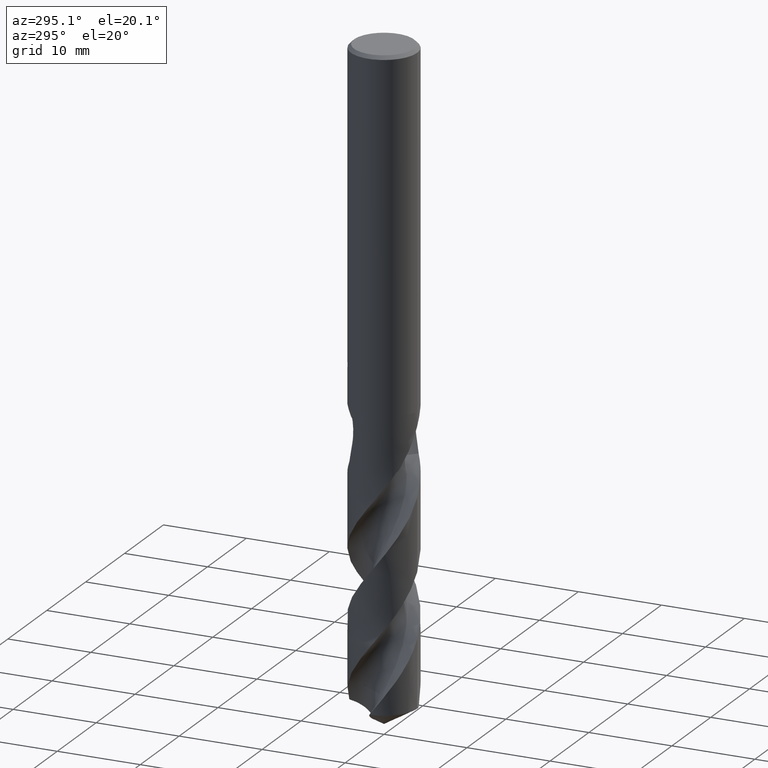
[diagram: clean part render]
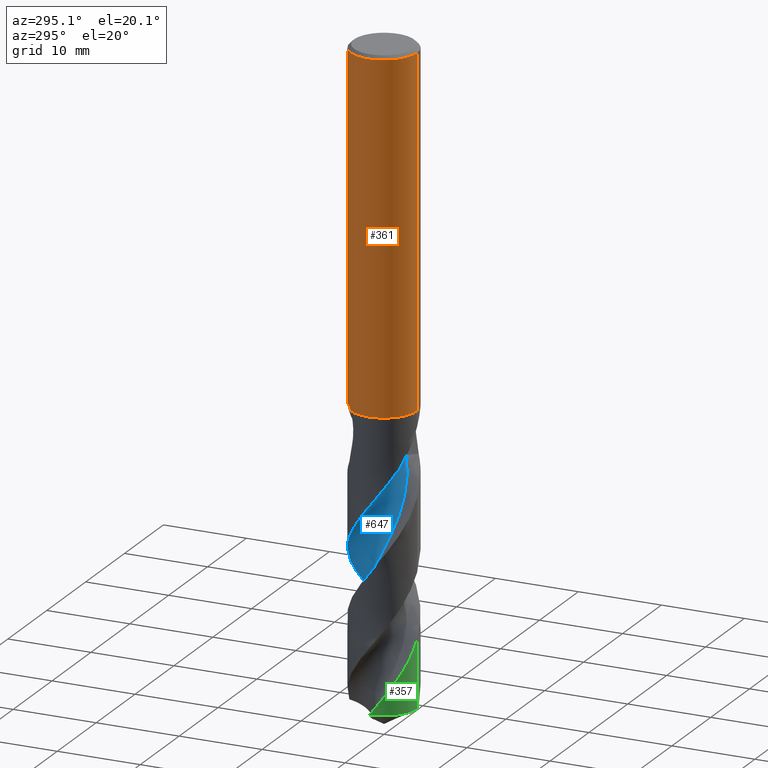
[diagram: same view with three faces highlighted in distinct colors, each labeled with its STEP entity id]
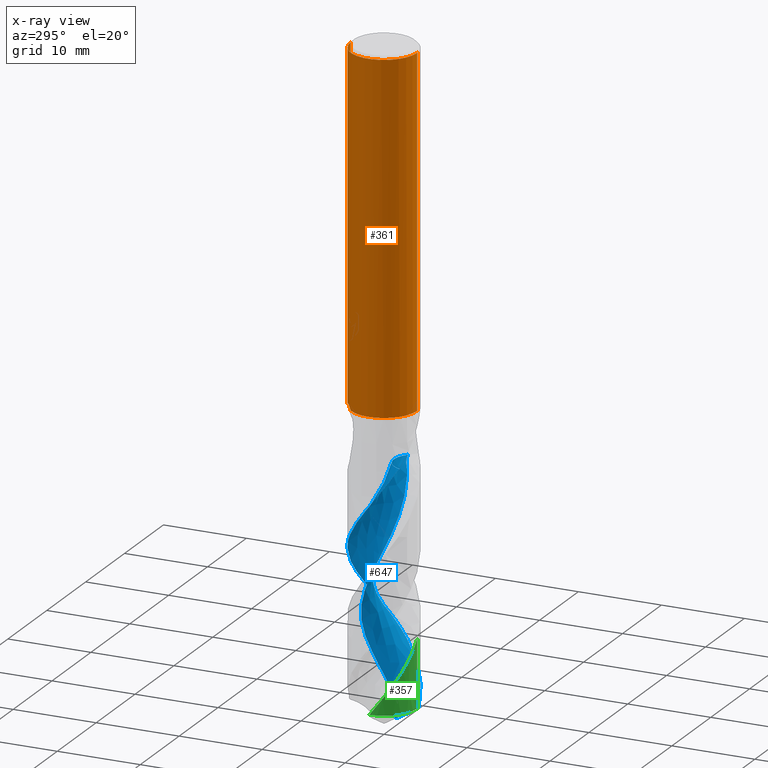
[diagram: x-ray of the same camera — body ghosted, the three highlighted faces saturated]
A machine part, auxiliary view with three faces highlighted in distinct colors.
The next image is the same camera in x-ray (body ghosted, the three faces saturated) — at least one of them is partly hidden behind the body in this view.
Their STEP definitions:

[orange] entity #361 — the highlighted cylindrical surface (partial cylindrical patch) has radius 4 mm, axis along (-0, -0, 1).
#277=VERTEX_POINT('',#746);
#283=EDGE_CURVE('',#391,#643,#752,.T.);
#303=VERTEX_POINT('',#775);
#315=VERTEX_POINT('',#787);
#361=ADVANCED_FACE('',(#841),#842,.T.);
#377=VERTEX_POINT('',#858);
#391=VERTEX_POINT('',#873);
#399=VERTEX_POINT('',#883);
#443=VERTEX_POINT('',#930);
#457=EDGE_CURVE('',#495,#399,#945,.T.);
#469=EDGE_CURVE('',#391,#599,#957,.T.);
#489=EDGE_CURVE('',#675,#277,#979,.T.);
#491=VERTEX_POINT('',#981);
#495=VERTEX_POINT('',#985);
#505=EDGE_CURVE('',#675,#599,#997,.T.);
#509=EDGE_CURVE('',#303,#491,#1001,.T.);
#521=EDGE_CURVE('',#553,#495,#1013,.T.);
#545=EDGE_CURVE('',#617,#553,#1039,.T.);
#553=VERTEX_POINT('',#1048);
#555=EDGE_CURVE('',#643,#303,#1050,.T.);
#565=EDGE_CURVE('',#377,#443,#1061,.T.);
#589=EDGE_CURVE('',#399,#377,#1087,.T.);
#599=VERTEX_POINT('',#1098);
#617=VERTEX_POINT('',#1117);
#619=EDGE_CURVE('',#443,#277,#1119,.T.);
#643=VERTEX_POINT('',#1143);
#665=EDGE_CURVE('',#491,#315,#1167,.T.);
#675=VERTEX_POINT('',#1179);
#685=EDGE_CURVE('',#315,#617,#1190,.T.);
#746=CARTESIAN_POINT('',(-4.89842541528951E-016,4.0,-42.0));
#752=LINE('',#1389,#1390);
#775=CARTESIAN_POINT('',(0.0,4.0,-0.399999999999999));
#787=CARTESIAN_POINT('',(-0.486378944383044,3.97031932248035,-32.6432837483006));
#841=FACE_OUTER_BOUND('',#2377,.T.);
#842=CYLINDRICAL_SURFACE('',#2378,4.0);
#858=CARTESIAN_POINT('',(-1.337052752443,3.76991908894403,-34.3720803908795));
#873=CARTESIAN_POINT('',(4.89842541528951E-016,-4.0,-42.0));
#883=CARTESIAN_POINT('',(-4.89826538740652E-016,4.0,-33.7128911336578));
#930=CARTESIAN_POINT('',(-6.37761657961682E-016,4.0,-35.0310253601033));
#945=LINE('',#2643,#2644);
#957=CIRCLE('',#2682,4.0);
#979=CIRCLE('',#2763,4.0);
#981=CARTESIAN_POINT('',(3.18191848027288E-016,4.0,-33.0232688117743));
#985=CARTESIAN_POINT('',(-7.66087297491645E-016,4.0,-33.5000801551882));
#997=B_SPLINE_CURVE_WITH_KNOTS('',3,(#2783,#2784,#2785,#2786,#2787,#2788,#2789,#2790,#2791,#2792,#2793,#2794),.UNSPECIFIED.,.F.,.F.,(4,2,2,2,2,4),(0.0,0.756509912427429,1.21579775110336,1.59314384378872,1.97510931117337,2.38467101162397),.UNSPECIFIED.);
#1001=LINE('',#2800,#2801);
#1013=B_SPLINE_CURVE_WITH_KNOTS('',3,(#2906,#2907,#2908,#2909,#2910,#2911,#2912,#2913,#2914,#2915,#2916,#2917,#2918,#2919),.UNSPECIFIED.,.F.,.F.,(4,2,2,2,2,2,4),(3.1414972576051,3.58983629155794,4.03817532551078,4.48651435946363,4.93338740522822,5.38026045099282,5.83106711565938),.UNSPECIFIED.);
#1039=CIRCLE('',#3378,4.0);
#1048=CARTESIAN_POINT('',(-1.0350734039088,3.86375763325298,-32.3171221986971));
#1050=CIRCLE('',#3405,4.0);
#1061=B_SPLINE_CURVE_WITH_KNOTS('',3,(#3421,#3422,#3423,#3424,#3425,#3426,#3427,#3428,#3429,#3430,#3431,#3432,#3433,#3434,#3435,#3436),.UNSPECIFIED.,.F.,.F.,(4,2,2,2,2,2,2,4),(5.59330412183837,6.21519943861119,6.52611580040833,6.83703216220547,7.14794852400261,7.45886488579975,7.76904377517711,8.07922266455448),.UNSPECIFIED.);
#1087=ELLIPSE('',#3584,4.45971372817144,4.0);
#1098=CARTESIAN_POINT('',(-3.03043874900923,2.61083147455046,-42.0));
#1117=CARTESIAN_POINT('',(-0.562333990228013,3.9602753039952,-32.3171221986971));
#1119=LINE('',#3881,#3882);
#1143=CARTESIAN_POINT('',(4.89842541528951E-016,-4.0,-0.399999999999999));
#1167=B_SPLINE_CURVE_WITH_KNOTS('',3,(#4647,#4648,#4649,#4650,#4651,#4652,#4653,#4654,#4655,#4656,#4657,#4658,#4659,#4660,#4661,#4662,#4663,#4664,#4665,#4666,#4667,#4668,#4669,#4670,#4671,#4672,#4673),.UNSPECIFIED.,.F.,.F.,(4,2,3,2,2,2,2,2,2,2,2,2,4),(-0.543018145553852,-0.271509072776926,0.0,0.271509072776925,0.543018145553851,0.815414280910788,1.08781041626772,1.35870467547365,1.62959893467958,1.90093601549038,2.17227309630118,2.44361017711198,2.71494725792277),.UNSPECIFIED.);
#1179=CARTESIAN_POINT('',(-1.3636486475424,3.76038061451973,-42.0));
#1190=B_SPLINE_CURVE_WITH_KNOTS('',3,(#4724,#4725,#4726,#4727,#4728,#4729,#4730,#4731,#4732,#4733,#4734,#4735,#4736,#4737,#4738,#4739,#4740,#4741,#4742,#4743,#4744,#4745,#4746,#4747,#4748,#4749,#4750),.UNSPECIFIED.,.F.,.F.,(4,2,3,2,2,2,2,2,2,2,2,2,4),(-0.543018145553852,-0.271509072776926,0.0,0.271509072776925,0.543018145553851,0.815414280910788,1.08781041626772,1.35870467547365,1.62959893467958,1.90093601549038,2.17227309630118,2.44361017711198,2.71494725792277),.UNSPECIFIED.);
#1389=CARTESIAN_POINT('',(4.89842541528951E-016,-4.0,-18.7));
#1390=VECTOR('',#4901,1.0);
#2377=EDGE_LOOP('',(#5031,#5032,#5033,#5034,#5035,#5036,#5037,#5038,#5039,#5040,#5041,#5042,#5043,#5044));
#2378=AXIS2_PLACEMENT_3D('',#5045,#5046,#5047);
#2643=CARTESIAN_POINT('',(-4.89842541528951E-016,4.0,-18.7));
#2644=VECTOR('',#5161,1.0);
#2682=AXIS2_PLACEMENT_3D('',#5166,#5167,#5168);
#2763=AXIS2_PLACEMENT_3D('',#5190,#5191,#5192);
#2783=CARTESIAN_POINT('',(-1.3636486475424,3.76038061451973,-42.0));
#2784=CARTESIAN_POINT('',(-1.53803211788226,3.69714292454641,-41.8291752534995));
#2785=CARTESIAN_POINT('',(-1.73323136042249,3.61236933305406,-41.669081449096));
#2786=CARTESIAN_POINT('',(-2.05795505081289,3.43285127620594,-41.5073760558736));
#2787=CARTESIAN_POINT('',(-2.183552092423,3.35490586853561,-41.4680618832215));
#2788=CARTESIAN_POINT('',(-2.41060746004572,3.19447879212882,-41.4586462671471));
#2789=CARTESIAN_POINT('',(-2.50696211418948,3.11914909209722,-41.4777304185582));
#2790=CARTESIAN_POINT('',(-2.68773587344648,2.96485574910874,-41.5626572735304));
#2791=CARTESIAN_POINT('',(-2.76761099238618,2.88967709367292,-41.6269844954505));
#2792=CARTESIAN_POINT('',(-2.91295605331751,2.74336912817674,-41.7906182712461));
#2793=CARTESIAN_POINT('',(-2.97649078817321,2.67344983676232,-41.8915223921262));
#2794=CARTESIAN_POINT('',(-3.03043874900923,2.61083147455047,-42.0));
#2800=CARTESIAN_POINT('',(-4.89842541528951E-016,4.0,-18.7));
#2801=VECTOR('',#5210,1.0);
#2906=CARTESIAN_POINT('',(-0.944485730255265,3.88689422358574,-31.8721937017831));
#2907=CARTESIAN_POINT('',(-1.00507715869677,3.87217097566101,-32.0179579829107));
#2908=CARTESIAN_POINT('',(-1.03510901790186,3.86374809233964,-32.1768555160818));
#2909=CARTESIAN_POINT('',(-1.03510901790186,3.86374809233964,-32.4757482053837));
#2910=CARTESIAN_POINT('',(-1.00507715869677,3.87217097566101,-32.6346457385549));
#2911=CARTESIAN_POINT('',(-0.883894301813806,3.90161747151052,-32.9261743008101));
#2912=CARTESIAN_POINT('',(-0.792777739201661,3.92209884636082,-33.0588741566082));
#2913=CARTESIAN_POINT('',(-0.583167230532527,3.95868636589293,-33.2680863721804));
#2914=CARTESIAN_POINT('',(-0.450583834960465,3.97722069531043,-33.3588815936827));
#2915=CARTESIAN_POINT('',(-0.159473350781578,3.99948477939054,-33.4795403751275));
#2916=CARTESIAN_POINT('',(-0.000897992260162905,4.00277248724098,-33.5093686300866));
#2917=CARTESIAN_POINT('',(0.298123804149289,3.99170426461769,-33.5093686300866));
#2918=CARTESIAN_POINT('',(0.457309150143187,3.97650554840773,-33.479068217488));
#2919=CARTESIAN_POINT('',(0.603028766367667,3.9542832861257,-33.4183446035468));
#3378=AXIS2_PLACEMENT_3D('',#5234,#5235,#5236);
#3405=AXIS2_PLACEMENT_3D('',#5247,#5248,#5249);
#3421=CARTESIAN_POINT('',(-1.53169074080201,3.69512157777541,-34.0291469804961));
#3422=CARTESIAN_POINT('',(-1.44828662161398,3.72969396308271,-34.2292685117474));
#3423=CARTESIAN_POINT('',(-1.3235119204923,3.77766697431007,-34.4106519059977));
#3424=CARTESIAN_POINT('',(-1.10876972720289,3.84398770228913,-34.6255223555534));
#3425=CARTESIAN_POINT('',(-1.0278462850084,3.86675406900514,-34.6929304922165));
#3426=CARTESIAN_POINT('',(-0.851215741256178,3.9094356085587,-34.8121513963803));
#3427=CARTESIAN_POINT('',(-0.755506440008018,3.92931563110609,-34.8639734861066));
#3428=CARTESIAN_POINT('',(-0.55516132520436,3.96258844897707,-34.9475385932463));
#3429=CARTESIAN_POINT('',(-0.450345578096092,3.97598591776774,-34.9793474763458));
#3430=CARTESIAN_POINT('',(-0.238765831475676,3.99427916347003,-35.0212208804589));
#3431=CARTESIAN_POINT('',(-0.131998351317953,3.99916459194608,-35.0312723335086));
#3432=CARTESIAN_POINT('',(0.0750281946656649,4.00063255933723,-35.0312723335086));
#3433=CARTESIAN_POINT('',(0.181611397509719,3.99727906083033,-35.0212676362976));
#3434=CARTESIAN_POINT('',(0.392937729655654,3.98206259750675,-34.9795209106323));
#3435=CARTESIAN_POINT('',(0.497684032548136,3.97021008398904,-34.9477911393989));
#3436=CARTESIAN_POINT('',(0.597825841435797,3.9550732310934,-34.9060826866649));
#3584=AXIS2_PLACEMENT_3D('',#5287,#5288,#5289);
#3881=CARTESIAN_POINT('',(-4.89842541528951E-016,4.0,-18.7));
#3882=VECTOR('',#5311,1.0);
#4647=CARTESIAN_POINT('',(0.665279195004376,3.9442874632428,-31.8137529884524));
#4648=CARTESIAN_POINT('',(0.72877088492158,3.9335783806135,-31.8773526603125));
#4649=CARTESIAN_POINT('',(0.783944488018488,3.92260552826083,-31.957920893425));
#4650=CARTESIAN_POINT('',(0.85726707399334,3.90723639918054,-32.134802544027));
#4651=CARTESIAN_POINT('',(0.875400981188567,3.90303383563787,-32.2311389883278));
#4652=CARTESIAN_POINT('',(0.875400981188567,3.90303383563787,-32.3216420125868));
#4653=CARTESIAN_POINT('',(0.875400981188567,3.90303383563787,-32.4121450368458));
#4654=CARTESIAN_POINT('',(0.85726707399334,3.90723639918054,-32.5084814811466));
#4655=CARTESIAN_POINT('',(0.783944488018488,3.92260552826083,-32.6853631317486));
#4656=CARTESIAN_POINT('',(0.728770884921581,3.9335783806135,-32.765931364861));
#4657=CARTESIAN_POINT('',(0.601580067811905,3.95503153411898,-32.8933384986505));
#4658=CARTESIAN_POINT('',(0.520902117238449,3.96693827151805,-32.9487071231089));
#4659=CARTESIAN_POINT('',(0.343752086871947,3.98619778335453,-33.0223037477669));
#4660=CARTESIAN_POINT('',(0.247255556938652,3.99338316413851,-33.0405166027747));
#4661=CARTESIAN_POINT('',(0.0662974670001866,4.00046977119903,-33.0405166027747));
#4662=CARTESIAN_POINT('',(-0.0299674229107105,4.00086780861984,-33.0224830783565));
#4663=CARTESIAN_POINT('',(-0.206991592502206,3.99562207288533,-32.9491870835923));
#4664=CARTESIAN_POINT('',(-0.287758268875904,3.99014940483369,-32.8939303320089));
#4665=CARTESIAN_POINT('',(-0.415384305359873,3.97889009382894,-32.7664425414649));
#4666=CARTESIAN_POINT('',(-0.47075383557047,3.9723749730993,-32.6856442592887));
#4667=CARTESIAN_POINT('',(-0.544239101864661,3.96297563900076,-32.5084730190186));
#4668=CARTESIAN_POINT('',(-0.562348199187247,3.96027328638705,-32.4120877061904));
#4669=CARTESIAN_POINT('',(-0.562348199187247,3.96027328638705,-32.2311963189832));
#4670=CARTESIAN_POINT('',(-0.544239101864661,3.96297563900076,-32.134811006155));
#4671=CARTESIAN_POINT('',(-0.47075383557047,3.9723749730993,-31.9576397658849));
#4672=CARTESIAN_POINT('',(-0.415384305359873,3.97889009382894,-31.8768414837086));
#4673=CARTESIAN_POINT('',(-0.35151917323021,3.98452434687649,-31.8130455309993));
#4724=CARTESIAN_POINT('',(0.665279195004376,3.9442874632428,-31.8137529884524));
#4725=CARTESIAN_POINT('',(0.72877088492158,3.9335783806135,-31.8773526603125));
#4726=CARTESIAN_POINT('',(0.783944488018488,3.92260552826083,-31.957920893425));
#4727=CARTESIAN_POINT('',(0.85726707399334,3.90723639918054,-32.134802544027));
#4728=CARTESIAN_POINT('',(0.875400981188567,3.90303383563787,-32.2311389883278));
#4729=CARTESIAN_POINT('',(0.875400981188567,3.90303383563787,-32.3216420125868));
#4730=CARTESIAN_POINT('',(0.875400981188567,3.90303383563787,-32.4121450368458));
#4731=CARTESIAN_POINT('',(0.85726707399334,3.90723639918054,-32.5084814811466));
#4732=CARTESIAN_POINT('',(0.783944488018488,3.92260552826083,-32.6853631317486));
#4733=CARTESIAN_POINT('',(0.728770884921581,3.9335783806135,-32.765931364861));
#4734=CARTESIAN_POINT('',(0.601580067811905,3.95503153411898,-32.8933384986505));
#4735=CARTESIAN_POINT('',(0.520902117238449,3.96693827151805,-32.9487071231089));
#4736=CARTESIAN_POINT('',(0.343752086871947,3.98619778335453,-33.0223037477669));
#4737=CARTESIAN_POINT('',(0.247255556938652,3.99338316413851,-33.0405166027747));
#4738=CARTESIAN_POINT('',(0.0662974670001866,4.00046977119903,-33.0405166027747));
#4739=CARTESIAN_POINT('',(-0.0299674229107105,4.00086780861984,-33.0224830783565));
#4740=CARTESIAN_POINT('',(-0.206991592502206,3.99562207288533,-32.9491870835923));
#4741=CARTESIAN_POINT('',(-0.287758268875904,3.99014940483369,-32.8939303320089));
#4742=CARTESIAN_POINT('',(-0.415384305359873,3.97889009382894,-32.7664425414649));
#4743=CARTESIAN_POINT('',(-0.47075383557047,3.9723749730993,-32.6856442592887));
#4744=CARTESIAN_POINT('',(-0.544239101864661,3.96297563900076,-32.5084730190186));
#4745=CARTESIAN_POINT('',(-0.562348199187247,3.96027328638705,-32.4120877061904));
#4746=CARTESIAN_POINT('',(-0.562348199187247,3.96027328638705,-32.2311963189832));
#4747=CARTESIAN_POINT('',(-0.544239101864661,3.96297563900076,-32.134811006155));
#4748=CARTESIAN_POINT('',(-0.47075383557047,3.9723749730993,-31.9576397658849));
#4749=CARTESIAN_POINT('',(-0.415384305359873,3.97889009382894,-31.8768414837086));
#4750=CARTESIAN_POINT('',(-0.35151917323021,3.98452434687649,-31.8130455309993));
#4901=DIRECTION('',(-0.0,-0.0,1.0));
#5031=ORIENTED_EDGE('',*,*,#509,.T.);
#5032=ORIENTED_EDGE('',*,*,#665,.T.);
#5033=ORIENTED_EDGE('',*,*,#685,.T.);
#5034=ORIENTED_EDGE('',*,*,#545,.T.);
#5035=ORIENTED_EDGE('',*,*,#521,.T.);
#5036=ORIENTED_EDGE('',*,*,#457,.T.);
#5037=ORIENTED_EDGE('',*,*,#589,.T.);
#5038=ORIENTED_EDGE('',*,*,#565,.T.);
#5039=ORIENTED_EDGE('',*,*,#619,.T.);
#5040=ORIENTED_EDGE('',*,*,#489,.F.);
#5041=ORIENTED_EDGE('',*,*,#505,.T.);
#5042=ORIENTED_EDGE('',*,*,#469,.F.);
#5043=ORIENTED_EDGE('',*,*,#283,.T.);
#5044=ORIENTED_EDGE('',*,*,#555,.T.);
#5045=CARTESIAN_POINT('',(0.0,0.0,-18.7));
#5046=DIRECTION('',(-0.0,-0.0,1.0));
#5047=DIRECTION('',(0.0,1.0,0.0));
#5161=DIRECTION('',(0.0,0.0,-1.0));
#5166=CARTESIAN_POINT('',(0.0,0.0,-42.0));
#5167=DIRECTION('',(0.0,0.0,-1.0));
#5168=DIRECTION('',(0.0,-1.0,0.0));
#5190=CARTESIAN_POINT('',(0.0,0.0,-42.0));
#5191=DIRECTION('',(0.0,0.0,-1.0));
#5192=DIRECTION('',(0.0,-1.0,0.0));
#5210=DIRECTION('',(0.0,0.0,-1.0));
#5234=CARTESIAN_POINT('',(0.0,0.0,-32.3171221986971));
#5235=DIRECTION('',(0.0,-0.0,1.0));
#5236=DIRECTION('',(0.0,1.0,0.0));
#5247=CARTESIAN_POINT('',(0.0,0.0,-0.399999999999999));
#5248=DIRECTION('',(0.0,0.0,-1.0));
#5249=DIRECTION('',(0.0,1.0,0.0));
#5287=CARTESIAN_POINT('',(0.0,0.0,-33.7128911336578));
#5288=DIRECTION('',(-0.442195774284071,0.0,0.896918556617774));
#5289=DIRECTION('',(0.896918556617774,-0.0,0.442195774284071));
#5311=DIRECTION('',(0.0,0.0,-1.0));

[blue] entity #647 — the highlighted face is a freeform B-spline surface patch.
#305=EDGE_CURVE('',#331,#529,#777,.T.);
#331=VERTEX_POINT('',#806);
#335=VERTEX_POINT('',#810);
#369=EDGE_CURVE('',#415,#335,#850,.T.);
#385=EDGE_CURVE('',#667,#499,#867,.T.);
#415=VERTEX_POINT('',#901);
#451=EDGE_CURVE('',#335,#667,#939,.T.);
#459=EDGE_CURVE('',#529,#539,#947,.T.);
#473=VERTEX_POINT('',#961);
#499=VERTEX_POINT('',#990);
#529=VERTEX_POINT('',#1022);
#533=EDGE_CURVE('',#473,#415,#1026,.T.);
#537=EDGE_CURVE('',#539,#473,#1031,.T.);
#539=VERTEX_POINT('',#1033);
#597=EDGE_CURVE('',#499,#331,#1096,.T.);
#647=ADVANCED_FACE('',(#1147),#1148,.F.);
#667=VERTEX_POINT('',#1169);
#777=B_SPLINE_CURVE_WITH_KNOTS('',3,(#1533,#1534,#1535,#1536,#1537,#1538,#1539,#1540,#1541,#1542,#1543,#1544,#1545,#1546,#1547,#1548,#1549,#1550,#1551,#1552,#1553,#1554),.UNSPECIFIED.,.F.,.F.,(4,2,2,2,2,2,2,2,2,2,4),(0.0,1.4331126392914,2.52917841423458,3.2519684623966,3.88211240655354,4.65853415544204,5.57758160464619,6.59864985610979,7.69025322384364,8.72083893590043,9.75312929684419),.UNSPECIFIED.);
#806=CARTESIAN_POINT('',(2.59064800177447E-011,-1.50043205521488,-78.0984494664948));
#810=CARTESIAN_POINT('',(0.295648481243269,-1.21642517070541,-48.053));
#850=CIRCLE('',#2399,2.66666667);
#867=B_SPLINE_CURVE_WITH_KNOTS('',3,(#2420,#2421,#2422,#2423,#2424,#2425,#2426,#2427,#2428,#2429,#2430,#2431,#2432,#2433,#2434,#2435,#2436,#2437,#2438,#2439,#2440,#2441,#2442,#2443,#2444,#2445,#2446,#2447,#2448,#2449,#2450,#2451,#2452,#2453,#2454,#2455,#2456,#2457,#2458,#2459,#2460,#2461,#2462,#2463,#2464,#2465,#2466,#2467,#2468,#2469,#2470,#2471,#2472,#2473),.UNSPECIFIED.,.F.,.F.,(4,1,2,2,2,2,2,2,1,2,1,2,1,2,1,2,1,2,1,2,1,2,1,2,1,2,1,2,1,2,1,2,1,4),(0.0,0.707950236283918,1.41590047256784,2.83180094513567,4.24770141770351,5.66360189027135,7.07950236283918,8.49540283540702,9.91130330797486,11.3272037805427,12.7431042531105,14.1590047256784,15.5749051982462,16.990805670814,18.4067061433819,19.8226066159497,21.2385070885176,22.6544075610854,24.0703080336532,25.4862085062211,26.9021089787889,28.3180094513567,29.7339099239246,31.1498103964924,32.5657108690602,33.9816113416281,35.3975118141959,36.8134122867638,38.2293127593316,39.6452132318994,41.0611137044673,42.4770141770351,43.8929146496029,45.3088151221708),.UNSPECIFIED.);
#901=CARTESIAN_POINT('',(-2.54883350937528,-3.08265919556083,-48.053));
#939=CIRCLE('',#2625,2.66666667);
#947=B_SPLINE_CURVE_WITH_KNOTS('',3,(#2647,#2648,#2649,#2650,#2651,#2652,#2653,#2654,#2655,#2656,#2657,#2658,#2659,#2660,#2661,#2662,#2663,#2664,#2665,#2666,#2667,#2668),.UNSPECIFIED.,.F.,.F.,(4,2,2,2,2,2,2,2,2,2,4),(0.0,1.4331126392914,2.52917841423458,3.2519684623966,3.88211240655354,4.65853415544204,5.57758160464619,6.59864985610979,7.69025322384364,8.72083893590043,9.75312929684419),.UNSPECIFIED.);
#961=CARTESIAN_POINT('',(-6.97687518041647E-013,3.99995417081683,-60.7412378104188));
#990=CARTESIAN_POINT('',(2.47970099016166,-0.465640517538466,-77.4840037604061));
#1022=CARTESIAN_POINT('',(6.12167984343842E-011,-3.44730495711565,-76.9286502094907));
#1026=B_SPLINE_CURVE_WITH_KNOTS('',3,(#3156,#3157,#3158,#3159,#3160,#3161,#3162,#3163,#3164,#3165,#3166,#3167,#3168,#3169,#3170,#3171,#3172,#3173,#3174,#3175,#3176,#3177,#3178,#3179,#3180,#3181,#3182,#3183,#3184,#3185,#3186,#3187,#3188,#3189,#3190,#3191,#3192,#3193,#3194,#3195,#3196,#3197,#3198,#3199,#3200,#3201,#3202,#3203,#3204,#3205,#3206,#3207,#3208,#3209,#3210,#3211,#3212,#3213,#3214,#3215,#3216,#3217,#3218,#3219,#3220,#3221,#3222,#3223,#3224,#3225),.UNSPECIFIED.,.F.,.F.,(4,2,2,2,2,2,2,2,2,2,2,2,2,2,2,2,2,2,2,2,2,2,2,2,2,2,2,2,2,2,2,2,2,2,4),(0.0,1.0838170178663,2.69457627221985,3.90630160879793,4.71752763481427,6.50800140031491,6.8778477532713,8.56059950506666,9.92706717899538,11.0227708540741,12.0787530489375,13.911524045822,14.2383837156735,16.0998678695607,16.9318856248563,18.871608304816,19.168441156989,21.0274493398166,21.8431951737124,23.658475912854,23.9873593364759,26.0055135754289,26.8719214477093,28.0475028057297,29.239697705811,30.8474290742901,33.2492639718107,34.3308291129272,34.6448217419169,35.0025659508937,35.8553331857703,36.6394382027304,37.6739146541798,39.8239020061316,42.5012513797314),.UNSPECIFIED.);
#1031=B_SPLINE_CURVE_WITH_KNOTS('',3,(#3231,#3232,#3233,#3234,#3235,#3236,#3237,#3238,#3239,#3240,#3241,#3242,#3243,#3244,#3245,#3246,#3247,#3248,#3249,#3250,#3251,#3252,#3253,#3254,#3255,#3256,#3257,#3258,#3259,#3260,#3261,#3262,#3263,#3264,#3265,#3266,#3267,#3268,#3269,#3270,#3271,#3272,#3273,#3274,#3275,#3276,#3277,#3278,#3279,#3280,#3281,#3282,#3283,#3284,#3285,#3286,#3287,#3288,#3289,#3290,#3291,#3292,#3293,#3294,#3295,#3296,#3297,#3298,#3299,#3300),.UNSPECIFIED.,.F.,.F.,(4,2,2,2,2,2,2,2,2,2,2,2,2,2,2,2,2,2,2,2,2,2,2,2,2,2,2,2,2,2,2,2,2,2,4),(0.0,1.0838170178663,2.69457627221985,3.90630160879793,4.71752763481427,6.50800140031491,6.8778477532713,8.56059950506666,9.92706717899538,11.0227708540741,12.0787530489375,13.911524045822,14.2383837156735,16.0998678695607,16.9318856248563,18.871608304816,19.168441156989,21.0274493398166,21.8431951737124,23.658475912854,23.9873593364759,26.0055135754289,26.8719214477093,28.0475028057297,29.239697705811,30.8474290742901,33.2492639718107,34.3308291129272,34.6448217419169,35.0025659508937,35.8553331857703,36.6394382027304,37.6739146541798,39.8239020061316,42.5012513797314),.UNSPECIFIED.);
#1033=CARTESIAN_POINT('',(0.439526114631849,-3.97577876579628,-76.5965575238898));
#1096=B_SPLINE_CURVE_WITH_KNOTS('',3,(#3817,#3818,#3819,#3820,#3821,#3822,#3823,#3824,#3825,#3826,#3827,#3828,#3829,#3830,#3831,#3832,#3833,#3834,#3835,#3836,#3837,#3838),.UNSPECIFIED.,.F.,.F.,(4,2,2,2,2,2,2,2,2,2,4),(0.0,1.4331126392914,2.52917841423458,3.2519684623966,3.88211240655354,4.65853415544204,5.57758160464619,6.59864985610979,7.69025322384364,8.72083893590043,9.75312929684419),.UNSPECIFIED.);
#1147=FACE_OUTER_BOUND('',#3985,.T.);
#1148=B_SPLINE_SURFACE_WITH_KNOTS('',3,3,((#3986,#3987,#3988,#3989,#3990,#3991,#3992,#3993,#3994,#3995,#3996,#3997,#3998,#3999,#4000,#4001,#4002,#4003,#4004,#4005,#4006,#4007,#4008,#4009,#4010,#4011,#4012,#4013,#4014,#4015,#4016,#4017,#4018,#4019,#4020,#4021,#4022,#4023,#4024,#4025,#4026,#4027,#4028,#4029,#4030,#4031,#4032,#4033,#4034,#4035,#4036,#4037,#4038,#4039),(#4040,#4041,#4042,#4043,#4044,#4045,#4046,#4047,#4048,#4049,#4050,#4051,#4052,#4053,#4054,#4055,#4056,#4057,#4058,#4059,#4060,#4061,#4062,#4063,#4064,#4065,#4066,#4067,#4068,#4069,#4070,#4071,#4072,#4073,#4074,#4075,#4076,#4077,#4078,#4079,#4080,#4081,#4082,#4083,#4084,#4085,#4086,#4087,#4088,#4089,#4090,#4091,#4092,#4093),(#4094,#4095,#4096,#4097,#4098,#4099,#4100,#4101,#4102,#4103,#4104,#4105,#4106,#4107,#4108,#4109,#4110,#4111,#4112,#4113,#4114,#4115,#4116,#4117,#4118,#4119,#4120,#4121,#4122,#4123,#4124,#4125,#4126,#4127,#4128,#4129,#4130,#4131,#4132,#4133,#4134,#4135,#4136,#4137,#4138,#4139,#4140,#4141,#4142,#4143,#4144,#4145,#4146,#4147),(#4148,#4149,#4150,#4151,#4152,#4153,#4154,#4155,#4156,#4157,#4158,#4159,#4160,#4161,#4162,#4163,#4164,#4165,#4166,#4167,#4168,#4169,#4170,#4171,#4172,#4173,#4174,#4175,#4176,#4177,#4178,#4179,#4180,#4181,#4182,#4183,#4184,#4185,#4186,#4187,#4188,#4189,#4190,#4191,#4192,#4193,#4194,#4195,#4196,#4197,#4198,#4199,#4200,#4201),(#4202,#4203,#4204,#4205,#4206,#4207,#4208,#4209,#4210,#4211,#4212,#4213,#4214,#4215,#4216,#4217,#4218,#4219,#4220,#4221,#4222,#4223,#4224,#4225,#4226,#4227,#4228,#4229,#4230,#4231,#4232,#4233,#4234,#4235,#4236,#4237,#4238,#4239,#4240,#4241,#4242,#4243,#4244,#4245,#4246,#4247,#4248,#4249,#4250,#4251,#4252,#4253,#4254,#4255),(#4256,#4257,#4258,#4259,#4260,#4261,#4262,#4263,#4264,#4265,#4266,#4267,#4268,#4269,#4270,#4271,#4272,#4273,#4274,#4275,#4276,#4277,#4278,#4279,#4280,#4281,#4282,#4283,#4284,#4285,#4286,#4287,#4288,#4289,#4290,#4291,#4292,#4293,#4294,#4295,#4296,#4297,#4298,#4299,#4300,#4301,#4302,#4303,#4304,#4305,#4306,#4307,#4308,#4309),(#4310,#4311,#4312,#4313,#4314,#4315,#4316,#4317,#4318,#4319,#4320,#4321,#4322,#4323,#4324,#4325,#4326,#4327,#4328,#4329,#4330,#4331,#4332,#4333,#4334,#4335,#4336,#4337,#4338,#4339,#4340,#4341,#4342,#4343,#4344,#4345,#4346,#4347,#4348,#4349,#4350,#4351,#4352,#4353,#4354,#4355,#4356,#4357,#4358,#4359,#4360,#4361,#4362,#4363),(#4364,#4365,#4366,#4367,#4368,#4369,#4370,#4371,#4372,#4373,#4374,#4375,#4376,#4377,#4378,#4379,#4380,#4381,#4382,#4383,#4384,#4385,#4386,#4387,#4388,#4389,#4390,#4391,#4392,#4393,#4394,#4395,#4396,#4397,#4398,#4399,#4400,#4401,#4402,#4403,#4404,#4405,#4406,#4407,#4408,#4409,#4410,#4411,#4412,#4413,#4414,#4415,#4416,#4417),(#4418,#4419,#4420,#4421,#4422,#4423,#4424,#4425,#4426,#4427,#4428,#4429,#4430,#4431,#4432,#4433,#4434,#4435,#4436,#4437,#4438,#4439,#4440,#4441,#4442,#4443,#4444,#4445,#4446,#4447,#4448,#4449,#4450,#4451,#4452,#4453,#4454,#4455,#4456,#4457,#4458,#4459,#4460,#4461,#4462,#4463,#4464,#4465,#4466,#4467,#4468,#4469,#4470,#4471),(#4472,#4473,#4474,#4475,#4476,#4477,#4478,#4479,#4480,#4481,#4482,#4483,#4484,#4485,#4486,#4487,#4488,#4489,#4490,#4491,#4492,#4493,#4494,#4495,#4496,#4497,#4498,#4499,#4500,#4501,#4502,#4503,#4504,#4505,#4506,#4507,#4508,#4509,#4510,#4511,#4512,#4513,#4514,#4515,#4516,#4517,#4518,#4519,#4520,#4521,#4522,#4523,#4524,#4525),(#4526,#4527,#4528,#4529,#4530,#4531,#4532,#4533,#4534,#4535,#4536,#4537,#4538,#4539,#4540,#4541,#4542,#4543,#4544,#4545,#4546,#4547,#4548,#4549,#4550,#4551,#4552,#4553,#4554,#4555,#4556,#4557,#4558,#4559,#4560,#4561,#4562,#4563,#4564,#4565,#4566,#4567,#4568,#4569,#4570,#4571,#4572,#4573,#4574,#4575,#4576,#4577,#4578,#4579)),.UNSPECIFIED.,.F.,.F.,.F.,(4,1,1,1,1,1,1,1,4),(4,1,2,2,2,2,2,2,1,2,1,2,1,2,1,2,1,2,1,2,1,2,1,2,1,2,1,2,1,2,1,2,1,4),(4.27095186761561E-018,0.39270124676232,0.785402493524641,1.17810374028696,1.57080498704928,1.9635062338116,2.35620748057392,2.74890872733624,3.14160997409856),(0.0,0.707950236283918,1.41590047256784,2.83180094513567,4.24770141770351,5.66360189027135,7.07950236283918,8.49540283540702,9.91130330797486,11.3272037805427,12.7431042531105,14.1590047256784,15.5749051982462,16.990805670814,18.4067061433819,19.8226066159497,21.2385070885176,22.6544075610854,24.0703080336532,25.4862085062211,26.9021089787889,28.3180094513567,29.7339099239246,31.1498103964924,32.5657108690602,33.9816113416281,35.3975118141959,36.8134122867638,38.2293127593316,39.6452132318994,41.0611137044673,42.4770141770351,43.8929146496029,45.3088151221708),.UNSPECIFIED.);
#1169=CARTESIAN_POINT('',(1.88561808545044,-1.98104858454956,-48.053));
#1533=CARTESIAN_POINT('',(2.47970099016058,-0.46564051753998,-77.4840037604083));
#1534=CARTESIAN_POINT('',(2.07045892249423,-0.546785717035246,-77.7166788597675));
#1535=CARTESIAN_POINT('',(1.6463034632081,-0.659191199046137,-77.9480594152687));
#1536=CARTESIAN_POINT('',(1.01723984439344,-0.862988771672093,-78.2090431761454));
#1537=CARTESIAN_POINT('',(0.802654612926233,-0.945763935907698,-78.2647883822549));
#1538=CARTESIAN_POINT('',(0.497553920897317,-1.0944821827617,-78.2821311810511));
#1539=CARTESIAN_POINT('',(0.362454680054199,-1.16840673778108,-78.2708342895289));
#1540=CARTESIAN_POINT('',(0.104963178209581,-1.37418270811364,-78.1758685813136));
#1541=CARTESIAN_POINT('',(0.00532529137824864,-1.4822105541476,-78.1104936945297));
#1542=CARTESIAN_POINT('',(-0.171551554232538,-1.74663820083629,-77.9468761772224));
#1543=CARTESIAN_POINT('',(-0.245621430386739,-1.91926468628114,-77.8374040921478));
#1544=CARTESIAN_POINT('',(-0.328155010200304,-2.34882507155509,-77.5749992100798));
#1545=CARTESIAN_POINT('',(-0.317574677588307,-2.59034639614738,-77.4325957425976));
#1546=CARTESIAN_POINT('',(-0.199824008944392,-3.08598670106328,-77.1425838318948));
#1547=CARTESIAN_POINT('',(-0.0760553194075523,-3.36396066975616,-76.9815500430923));
#1548=CARTESIAN_POINT('',(0.343448709221151,-3.91893920827411,-76.6395011217758));
#1549=CARTESIAN_POINT('',(0.625170551134143,-4.16126010669407,-76.4770028301033));
#1550=CARTESIAN_POINT('',(1.25131568875382,-4.52498543959215,-76.1833835579757));
#1551=CARTESIAN_POINT('',(1.58845749674328,-4.65086451898861,-76.0524513909463));
#1552=CARTESIAN_POINT('',(2.29492606871547,-4.79562615544874,-75.8106212759601));
#1553=CARTESIAN_POINT('',(2.66231209212137,-4.81396144236274,-75.7004898742018));
#1554=CARTESIAN_POINT('',(3.02809956946824,-4.77813907262923,-75.6010190539013));
#2399=AXIS2_PLACEMENT_3D('',#5049,#5050,#5051);
#2420=CARTESIAN_POINT('',(1.88561808545044,-1.98104858454956,-48.053));
#2421=CARTESIAN_POINT('',(1.71041226405037,-1.96974243496251,-48.2138999839293));
#2422=CARTESIAN_POINT('',(1.43031923356555,-1.98309990279543,-48.5344916392331));
#2423=CARTESIAN_POINT('',(1.29066915518103,-2.06097199786594,-48.8546763274633));
#2424=CARTESIAN_POINT('',(1.17231876905248,-2.23726157332611,-49.3405705282506));
#2425=CARTESIAN_POINT('',(1.0459189498329,-2.32184869014409,-49.6654878947563));
#2426=CARTESIAN_POINT('',(0.740741385122967,-2.416068825609,-50.3090157061718));
#2427=CARTESIAN_POINT('',(0.586796478059165,-2.45210349686871,-50.630871860943));
#2428=CARTESIAN_POINT('',(0.281894100224812,-2.50727548547272,-51.2757085357996));
#2429=CARTESIAN_POINT('',(0.126168469215696,-2.51930865867473,-51.5981634102791));
#2430=CARTESIAN_POINT('',(-0.183088798208255,-2.5188241545456,-52.2432928658746));
#2431=CARTESIAN_POINT('',(-0.338816948489241,-2.50113421470054,-52.5657966918713));
#2432=CARTESIAN_POINT('',(-0.643527007309378,-2.44039946237765,-53.2104822049889));
#2433=CARTESIAN_POINT('',(-0.793056501075684,-2.39507058662514,-53.5328093337881));
#2434=CARTESIAN_POINT('',(-1.08113100344668,-2.28404643428203,-54.1776963880912));
#2435=CARTESIAN_POINT('',(-1.35874723494693,-2.13769290446425,-54.8227802417333));
#2436=CARTESIAN_POINT('',(-1.60448111312091,-1.94426480828888,-55.4673616469647));
#2437=CARTESIAN_POINT('',(-1.83353269941099,-1.73822342398534,-56.1122310989537));
#2438=CARTESIAN_POINT('',(-2.03998318925982,-1.5024158787287,-56.7573532894465));
#2439=CARTESIAN_POINT('',(-2.19918524127078,-1.23318019225729,-57.4019666521524));
#2440=CARTESIAN_POINT('',(-2.33796994850303,-0.957924572072644,-58.0468105206283));
#2441=CARTESIAN_POINT('',(-2.44501571281244,-0.663257681929088,-58.6919029593311));
#2442=CARTESIAN_POINT('',(-2.4961436371782,-0.354708888209354,-59.3365084306306));
#2443=CARTESIAN_POINT('',(-2.52613028638395,-0.0479506221625967,-59.9813672965274));
#2444=CARTESIAN_POINT('',(-2.51946504077361,0.265468081824224,-60.6264726124801));
#2445=CARTESIAN_POINT('',(-2.45558340617545,0.571640356334419,-61.2710801617132));
#2446=CARTESIAN_POINT('',(-2.37263046779902,0.86849760854762,-61.9159336962246));
#2447=CARTESIAN_POINT('',(-2.25310913197794,1.15831099385268,-62.561034835414));
#2448=CARTESIAN_POINT('',(-2.08287316811624,1.42068438307721,-63.2056417616069));
#2449=CARTESIAN_POINT('',(-1.8982218315706,1.66747925190571,-63.8504967204279));
#2450=CARTESIAN_POINT('',(-1.68201703922317,1.89448668226323,-64.495598902834));
#2451=CARTESIAN_POINT('',(-1.42844360837156,2.07757472772209,-65.1402055499721));
#2452=CARTESIAN_POINT('',(-1.16706244851938,2.24092679900481,-65.785059434491));
#2453=CARTESIAN_POINT('',(-0.8834164177995,2.37442363123689,-66.4301606852304));
#2454=CARTESIAN_POINT('',(-0.58080609143587,2.45346268911702,-67.0747670467259));
#2455=CARTESIAN_POINT('',(-0.278049943713574,2.51127715127755,-67.719621079806));
#2456=CARTESIAN_POINT('',(0.034675777257856,2.53320181563945,-68.3647229707442));
#2457=CARTESIAN_POINT('',(0.345397417373381,2.49748933596536,-69.0093285518494));
#2458=CARTESIAN_POINT('',(0.648580404226257,2.44193536401762,-69.6541799975501));
#2459=CARTESIAN_POINT('',(0.94807839069497,2.3493382042853,-70.2992791920542));
#2460=CARTESIAN_POINT('',(1.22487801225402,2.20374167743412,-70.9438903305436));
#2461=CARTESIAN_POINT('',(1.4874797024698,2.04235727416319,-71.58875484242));
#2462=CARTESIAN_POINT('',(1.73324666976701,1.84770452337735,-72.2338624460418));
#2463=CARTESIAN_POINT('',(1.93867543899598,1.61186450580905,-72.8784483919778));
#2464=CARTESIAN_POINT('',(2.12518765473968,1.36651483705852,-73.5232624526044));
#2465=CARTESIAN_POINT('',(2.2840360821097,1.09633242354562,-74.1683472801871));
#2466=CARTESIAN_POINT('',(2.3902358023449,0.802051692895199,-74.8130322986633));
#2467=CARTESIAN_POINT('',(2.47506671960707,0.505474850603035,-75.4580252129583));
#2468=CARTESIAN_POINT('',(2.52519429318474,0.195834589148892,-76.1031830139818));
#2469=CARTESIAN_POINT('',(2.51913566530882,-0.11621802026429,-76.7476113961889));
#2470=CARTESIAN_POINT('',(2.49381854387969,-0.422258018876729,-77.3921703080163));
#2471=CARTESIAN_POINT('',(2.42881984315218,-0.728918678701884,-78.0372059116075));
#2472=CARTESIAN_POINT('',(2.3026819566444,-1.01822286823728,-78.6815705231783));
#2473=CARTESIAN_POINT('',(2.22982079525156,-1.15610845030387,-79.0036583058999));
#2625=AXIS2_PLACEMENT_3D('',#5155,#5156,#5157);
#2647=CARTESIAN_POINT('',(2.47970099016058,-0.46564051753998,-77.4840037604083));
#2648=CARTESIAN_POINT('',(2.07045892249423,-0.546785717035246,-77.7166788597675));
#2649=CARTESIAN_POINT('',(1.6463034632081,-0.659191199046137,-77.9480594152687));
#2650=CARTESIAN_POINT('',(1.01723984439344,-0.862988771672093,-78.2090431761454));
#2651=CARTESIAN_POINT('',(0.802654612926233,-0.945763935907698,-78.2647883822549));
#2652=CARTESIAN_POINT('',(0.497553920897317,-1.0944821827617,-78.2821311810511));
#2653=CARTESIAN_POINT('',(0.362454680054199,-1.16840673778108,-78.2708342895289));
#2654=CARTESIAN_POINT('',(0.104963178209581,-1.37418270811364,-78.1758685813136));
#2655=CARTESIAN_POINT('',(0.00532529137824864,-1.4822105541476,-78.1104936945297));
#2656=CARTESIAN_POINT('',(-0.171551554232538,-1.74663820083629,-77.9468761772224));
#2657=CARTESIAN_POINT('',(-0.245621430386739,-1.91926468628114,-77.8374040921478));
#2658=CARTESIAN_POINT('',(-0.328155010200304,-2.34882507155509,-77.5749992100798));
#2659=CARTESIAN_POINT('',(-0.317574677588307,-2.59034639614738,-77.4325957425976));
#2660=CARTESIAN_POINT('',(-0.199824008944392,-3.08598670106328,-77.1425838318948));
#2661=CARTESIAN_POINT('',(-0.0760553194075523,-3.36396066975616,-76.9815500430923));
#2662=CARTESIAN_POINT('',(0.343448709221151,-3.91893920827411,-76.6395011217758));
#2663=CARTESIAN_POINT('',(0.625170551134143,-4.16126010669407,-76.4770028301033));
#2664=CARTESIAN_POINT('',(1.25131568875382,-4.52498543959215,-76.1833835579757));
#2665=CARTESIAN_POINT('',(1.58845749674328,-4.65086451898861,-76.0524513909463));
#2666=CARTESIAN_POINT('',(2.29492606871547,-4.79562615544874,-75.8106212759601));
#2667=CARTESIAN_POINT('',(2.66231209212137,-4.81396144236274,-75.7004898742018));
#2668=CARTESIAN_POINT('',(3.02809956946824,-4.77813907262923,-75.6010190539013));
#3156=CARTESIAN_POINT('',(0.439526114631822,-3.9757787657963,-76.5965575238898));
#3157=CARTESIAN_POINT('',(0.657437887811408,-3.95168757748917,-76.3094133494915));
#3158=CARTESIAN_POINT('',(0.873203868774893,-3.90970140652243,-76.0239075623269));
#3159=CARTESIAN_POINT('',(1.3989283251119,-3.76159170022223,-75.3110321069792));
#3160=CARTESIAN_POINT('',(1.70103897942314,-3.63497491738155,-74.8832825911799));
#3161=CARTESIAN_POINT('',(2.19780664730509,-3.35110787812282,-74.1365283723642));
#3162=CARTESIAN_POINT('',(2.3992136154832,-3.20995722776012,-73.8178136861509));
#3163=CARTESIAN_POINT('',(2.71147461906248,-2.94529672399104,-73.2821036118755));
#3164=CARTESIAN_POINT('',(2.82989986542548,-2.83169866616135,-73.066394413132));
#3165=CARTESIAN_POINT('',(3.18661797259161,-2.44470150223815,-72.3773813882358));
#3166=CARTESIAN_POINT('',(3.39461543021031,-2.14647596385915,-71.9097170133269));
#3167=CARTESIAN_POINT('',(3.59371845493525,-1.75802461926263,-71.3375557714508));
#3168=CARTESIAN_POINT('',(3.625879073075,-1.69069242376706,-71.2394322636901));
#3169=CARTESIAN_POINT('',(3.79379606701643,-1.31230819701688,-70.6961894035638));
#3170=CARTESIAN_POINT('',(3.89156844272632,-0.985543469677269,-70.2562668293849));
#3171=CARTESIAN_POINT('',(3.9917221996918,-0.377245599896425,-69.4510193869452));
#3172=CARTESIAN_POINT('',(4.00823766777058,-0.100936326900959,-69.0883724121689));
#3173=CARTESIAN_POINT('',(3.98644630969067,0.396402982186068,-68.4381641153316));
#3174=CARTESIAN_POINT('',(3.95838147754873,0.61650471476976,-68.1503087108677));
#3175=CARTESIAN_POINT('',(3.86778658228967,1.04191334531469,-67.5821127365675));
#3176=CARTESIAN_POINT('',(3.80676198637745,1.24649984062043,-67.301905108832));
#3177=CARTESIAN_POINT('',(3.59612987731397,1.79008890754427,-66.5389725558105));
#3178=CARTESIAN_POINT('',(3.4154666641221,2.1143833192151,-66.0617696096497));
#3179=CARTESIAN_POINT('',(3.15348453411875,2.46162807188444,-65.4911044894649));
#3180=CARTESIAN_POINT('',(3.11259650977366,2.51312956495557,-65.404620305204));
#3181=CARTESIAN_POINT('',(2.83003736025408,2.85153468126315,-64.8262125626904));
#3182=CARTESIAN_POINT('',(2.55032385140591,3.10427971338708,-64.3414672102179));
#3183=CARTESIAN_POINT('',(2.10012088408404,3.40842465283429,-63.6307040782434));
#3184=CARTESIAN_POINT('',(1.95547458413528,3.49341357603715,-63.410226966119));
#3185=CARTESIAN_POINT('',(1.45697289743237,3.74563321411975,-62.6788153081246));
#3186=CARTESIAN_POINT('',(1.08457552395597,3.86982477288573,-62.1750205385283));
#3187=CARTESIAN_POINT('',(0.64172520138982,3.94859536707829,-61.584481664416));
#3188=CARTESIAN_POINT('',(0.582731454817267,3.95773404486001,-61.5059988990886));
#3189=CARTESIAN_POINT('',(0.151690286283091,4.01462194217953,-60.9357167602669));
#3190=CARTESIAN_POINT('',(-0.225131238196041,4.0112057837356,-60.451217407041));
#3191=CARTESIAN_POINT('',(-0.759043528574817,3.93072259815779,-59.7446832820843));
#3192=CARTESIAN_POINT('',(-0.920003444162102,3.89618982835668,-59.5283202851463));
#3193=CARTESIAN_POINT('',(-1.43125402112839,3.75303619434683,-58.8333074982786));
#3194=CARTESIAN_POINT('',(-1.76846178745478,3.60637561387029,-58.3604539343075));
#3195=CARTESIAN_POINT('',(-2.1374835814465,3.38158569893244,-57.7939734251453));
#3196=CARTESIAN_POINT('',(-2.19312750639541,3.3457628789896,-57.7069578855718));
#3197=CARTESIAN_POINT('',(-2.58353720389703,3.08051932066814,-57.0874485989016));
#3198=CARTESIAN_POINT('',(-2.88259086350769,2.80270049232965,-56.563917861172));
#3199=CARTESIAN_POINT('',(-3.24311717320889,2.34778753770921,-55.8036350657023));
#3200=CARTESIAN_POINT('',(-3.34241383517002,2.20415254731926,-55.5741751726715));
#3201=CARTESIAN_POINT('',(-3.55382157056835,1.85094946381052,-55.0357781212691));
#3202=CARTESIAN_POINT('',(-3.6573029209519,1.63705901756387,-54.7277397087469));
#3203=CARTESIAN_POINT('',(-3.82641942839117,1.18992868585743,-54.1041607484318));
#3204=CARTESIAN_POINT('',(-3.8909534757714,0.957905334642955,-53.7890934856974));
#3205=CARTESIAN_POINT('',(-3.9926875126211,0.403366922808898,-53.0511344355483));
#3206=CARTESIAN_POINT('',(-4.01225037765082,0.0789053262928811,-52.629968196841));
#3207=CARTESIAN_POINT('',(-3.96288097461799,-0.727453212306524,-51.5739836992014));
#3208=CARTESIAN_POINT('',(-3.84583474261922,-1.20254280394726,-50.9392253600346));
#3209=CARTESIAN_POINT('',(-3.55513462392447,-1.84621002536492,-50.0254165738401));
#3210=CARTESIAN_POINT('',(-3.45009650898123,-2.03535304709001,-49.7520288174485));
#3211=CARTESIAN_POINT('',(-3.29611420405602,-2.26691782219486,-49.3723555446791));
#3212=CARTESIAN_POINT('',(-3.26073790736354,-2.31746756903369,-49.2865005420874));
#3213=CARTESIAN_POINT('',(-3.1837561718517,-2.42236716381928,-49.1010424700832));
#3214=CARTESIAN_POINT('',(-3.15356781195152,-2.46059077327932,-49.0288265652118));
#3215=CARTESIAN_POINT('',(-3.12935043924544,-2.49144345631538,-48.9714504731978));
#3216=CARTESIAN_POINT('',(-3.11170752630979,-2.5134575434682,-48.9314976509781));
#3217=CARTESIAN_POINT('',(-3.07660202271369,-2.5562828801242,-48.8555752885569));
#3218=CARTESIAN_POINT('',(-3.05926911517441,-2.57701157946521,-48.8196088836213));
#3219=CARTESIAN_POINT('',(-3.01778156208494,-2.62558002337427,-48.7370320828295));
#3220=CARTESIAN_POINT('',(-2.99326444928451,-2.65352025733693,-48.6907867014456));
#3221=CARTESIAN_POINT('',(-2.91475309853438,-2.74040444940481,-48.550421712036));
#3222=CARTESIAN_POINT('',(-2.85779368919768,-2.7999499416123,-48.4590123593615));
#3223=CARTESIAN_POINT('',(-2.72011466902054,-2.93457437234462,-48.2598246675956));
#3224=CARTESIAN_POINT('',(-2.63769655552793,-3.00918498990264,-48.1545490696711));
#3225=CARTESIAN_POINT('',(-2.54883350937528,-3.08265919556083,-48.053));
#3231=CARTESIAN_POINT('',(0.439526114631822,-3.9757787657963,-76.5965575238898));
#3232=CARTESIAN_POINT('',(0.657437887811408,-3.95168757748917,-76.3094133494915));
#3233=CARTESIAN_POINT('',(0.873203868774893,-3.90970140652243,-76.0239075623269));
#3234=CARTESIAN_POINT('',(1.3989283251119,-3.76159170022223,-75.3110321069792));
#3235=CARTESIAN_POINT('',(1.70103897942314,-3.63497491738155,-74.8832825911799));
#3236=CARTESIAN_POINT('',(2.19780664730509,-3.35110787812282,-74.1365283723642));
#3237=CARTESIAN_POINT('',(2.3992136154832,-3.20995722776012,-73.8178136861509));
#3238=CARTESIAN_POINT('',(2.71147461906248,-2.94529672399104,-73.2821036118755));
#3239=CARTESIAN_POINT('',(2.82989986542548,-2.83169866616135,-73.066394413132));
#3240=CARTESIAN_POINT('',(3.18661797259161,-2.44470150223815,-72.3773813882358));
#3241=CARTESIAN_POINT('',(3.39461543021031,-2.14647596385915,-71.9097170133269));
#3242=CARTESIAN_POINT('',(3.59371845493525,-1.75802461926263,-71.3375557714508));
#3243=CARTESIAN_POINT('',(3.625879073075,-1.69069242376706,-71.2394322636901));
#3244=CARTESIAN_POINT('',(3.79379606701643,-1.31230819701688,-70.6961894035638));
#3245=CARTESIAN_POINT('',(3.89156844272632,-0.985543469677269,-70.2562668293849));
#3246=CARTESIAN_POINT('',(3.9917221996918,-0.377245599896425,-69.4510193869452));
#3247=CARTESIAN_POINT('',(4.00823766777058,-0.100936326900959,-69.0883724121689));
#3248=CARTESIAN_POINT('',(3.98644630969067,0.396402982186068,-68.4381641153316));
#3249=CARTESIAN_POINT('',(3.95838147754873,0.61650471476976,-68.1503087108677));
#3250=CARTESIAN_POINT('',(3.86778658228967,1.04191334531469,-67.5821127365675));
#3251=CARTESIAN_POINT('',(3.80676198637745,1.24649984062043,-67.301905108832));
#3252=CARTESIAN_POINT('',(3.59612987731397,1.79008890754427,-66.5389725558105));
#3253=CARTESIAN_POINT('',(3.4154666641221,2.1143833192151,-66.0617696096497));
#3254=CARTESIAN_POINT('',(3.15348453411875,2.46162807188444,-65.4911044894649));
#3255=CARTESIAN_POINT('',(3.11259650977366,2.51312956495557,-65.404620305204));
#3256=CARTESIAN_POINT('',(2.83003736025408,2.85153468126315,-64.8262125626904));
#3257=CARTESIAN_POINT('',(2.55032385140591,3.10427971338708,-64.3414672102179));
#3258=CARTESIAN_POINT('',(2.10012088408404,3.40842465283429,-63.6307040782434));
#3259=CARTESIAN_POINT('',(1.95547458413528,3.49341357603715,-63.410226966119));
#3260=CARTESIAN_POINT('',(1.45697289743237,3.74563321411975,-62.6788153081246));
#3261=CARTESIAN_POINT('',(1.08457552395597,3.86982477288573,-62.1750205385283));
#3262=CARTESIAN_POINT('',(0.64172520138982,3.94859536707829,-61.584481664416));
#3263=CARTESIAN_POINT('',(0.582731454817267,3.95773404486001,-61.5059988990886));
#3264=CARTESIAN_POINT('',(0.151690286283091,4.01462194217953,-60.9357167602669));
#3265=CARTESIAN_POINT('',(-0.225131238196041,4.0112057837356,-60.451217407041));
#3266=CARTESIAN_POINT('',(-0.759043528574817,3.93072259815779,-59.7446832820843));
#3267=CARTESIAN_POINT('',(-0.920003444162102,3.89618982835668,-59.5283202851463));
#3268=CARTESIAN_POINT('',(-1.43125402112839,3.75303619434683,-58.8333074982786));
#3269=CARTESIAN_POINT('',(-1.76846178745478,3.60637561387029,-58.3604539343075));
#3270=CARTESIAN_POINT('',(-2.1374835814465,3.38158569893244,-57.7939734251453));
#3271=CARTESIAN_POINT('',(-2.19312750639541,3.3457628789896,-57.7069578855718));
#3272=CARTESIAN_POINT('',(-2.58353720389703,3.08051932066814,-57.0874485989016));
#3273=CARTESIAN_POINT('',(-2.88259086350769,2.80270049232965,-56.563917861172));
#3274=CARTESIAN_POINT('',(-3.24311717320889,2.34778753770921,-55.8036350657023));
#3275=CARTESIAN_POINT('',(-3.34241383517002,2.20415254731926,-55.5741751726715));
#3276=CARTESIAN_POINT('',(-3.55382157056835,1.85094946381052,-55.0357781212691));
#3277=CARTESIAN_POINT('',(-3.6573029209519,1.63705901756387,-54.7277397087469));
#3278=CARTESIAN_POINT('',(-3.82641942839117,1.18992868585743,-54.1041607484318));
#3279=CARTESIAN_POINT('',(-3.8909534757714,0.957905334642955,-53.7890934856974));
#3280=CARTESIAN_POINT('',(-3.9926875126211,0.403366922808898,-53.0511344355483));
#3281=CARTESIAN_POINT('',(-4.01225037765082,0.0789053262928811,-52.629968196841));
#3282=CARTESIAN_POINT('',(-3.96288097461799,-0.727453212306524,-51.5739836992014));
#3283=CARTESIAN_POINT('',(-3.84583474261922,-1.20254280394726,-50.9392253600346));
#3284=CARTESIAN_POINT('',(-3.55513462392447,-1.84621002536492,-50.0254165738401));
#3285=CARTESIAN_POINT('',(-3.45009650898123,-2.03535304709001,-49.7520288174485));
#3286=CARTESIAN_POINT('',(-3.29611420405602,-2.26691782219486,-49.3723555446791));
#3287=CARTESIAN_POINT('',(-3.26073790736354,-2.31746756903369,-49.2865005420874));
#3288=CARTESIAN_POINT('',(-3.1837561718517,-2.42236716381928,-49.1010424700832));
#3289=CARTESIAN_POINT('',(-3.15356781195152,-2.46059077327932,-49.0288265652118));
#3290=CARTESIAN_POINT('',(-3.12935043924544,-2.49144345631538,-48.9714504731978));
#3291=CARTESIAN_POINT('',(-3.11170752630979,-2.5134575434682,-48.9314976509781));
#3292=CARTESIAN_POINT('',(-3.07660202271369,-2.5562828801242,-48.8555752885569));
#3293=CARTESIAN_POINT('',(-3.05926911517441,-2.57701157946521,-48.8196088836213));
#3294=CARTESIAN_POINT('',(-3.01778156208494,-2.62558002337427,-48.7370320828295));
#3295=CARTESIAN_POINT('',(-2.99326444928451,-2.65352025733693,-48.6907867014456));
#3296=CARTESIAN_POINT('',(-2.91475309853438,-2.74040444940481,-48.550421712036));
#3297=CARTESIAN_POINT('',(-2.85779368919768,-2.7999499416123,-48.4590123593615));
#3298=CARTESIAN_POINT('',(-2.72011466902054,-2.93457437234462,-48.2598246675956));
#3299=CARTESIAN_POINT('',(-2.63769655552793,-3.00918498990264,-48.1545490696711));
#3300=CARTESIAN_POINT('',(-2.54883350937528,-3.08265919556083,-48.053));
#3817=CARTESIAN_POINT('',(2.47970099016058,-0.46564051753998,-77.4840037604083));
#3818=CARTESIAN_POINT('',(2.07045892249423,-0.546785717035246,-77.7166788597675));
#3819=CARTESIAN_POINT('',(1.6463034632081,-0.659191199046137,-77.9480594152687));
#3820=CARTESIAN_POINT('',(1.01723984439344,-0.862988771672093,-78.2090431761454));
#3821=CARTESIAN_POINT('',(0.802654612926233,-0.945763935907698,-78.2647883822549));
#3822=CARTESIAN_POINT('',(0.497553920897317,-1.0944821827617,-78.2821311810511));
#3823=CARTESIAN_POINT('',(0.362454680054199,-1.16840673778108,-78.2708342895289));
#3824=CARTESIAN_POINT('',(0.104963178209581,-1.37418270811364,-78.1758685813136));
#3825=CARTESIAN_POINT('',(0.00532529137824864,-1.4822105541476,-78.1104936945297));
#3826=CARTESIAN_POINT('',(-0.171551554232538,-1.74663820083629,-77.9468761772224));
#3827=CARTESIAN_POINT('',(-0.245621430386739,-1.91926468628114,-77.8374040921478));
#3828=CARTESIAN_POINT('',(-0.328155010200304,-2.34882507155509,-77.5749992100798));
#3829=CARTESIAN_POINT('',(-0.317574677588307,-2.59034639614738,-77.4325957425976));
#3830=CARTESIAN_POINT('',(-0.199824008944392,-3.08598670106328,-77.1425838318948));
#3831=CARTESIAN_POINT('',(-0.0760553194075523,-3.36396066975616,-76.9815500430923));
#3832=CARTESIAN_POINT('',(0.343448709221151,-3.91893920827411,-76.6395011217758));
#3833=CARTESIAN_POINT('',(0.625170551134143,-4.16126010669407,-76.4770028301033));
#3834=CARTESIAN_POINT('',(1.25131568875382,-4.52498543959215,-76.1833835579757));
#3835=CARTESIAN_POINT('',(1.58845749674328,-4.65086451898861,-76.0524513909463));
#3836=CARTESIAN_POINT('',(2.29492606871547,-4.79562615544874,-75.8106212759601));
#3837=CARTESIAN_POINT('',(2.66231209212137,-4.81396144236274,-75.7004898742018));
#3838=CARTESIAN_POINT('',(3.02809956946824,-4.77813907262923,-75.6010190539013));
#3985=EDGE_LOOP('',(#5324,#5325,#5326,#5327,#5328,#5329,#5330,#5331));
#3986=CARTESIAN_POINT('',(-1.88561808545044,-5.75228475545044,-48.053));
#3987=CARTESIAN_POINT('',(-2.05780825328452,-5.74399425841127,-48.2139787754609));
#3988=CARTESIAN_POINT('',(-2.40620131619191,-5.69121857399855,-48.5382998054642));
#3989=CARTESIAN_POINT('',(-2.75313511215157,-5.54439039977467,-48.8638177711794));
#3990=CARTESIAN_POINT('',(-3.25533181892302,-5.23876239584507,-49.3454108180356));
#3991=CARTESIAN_POINT('',(-3.56823616320674,-5.01519871054866,-49.6648258832948));
#3992=CARTESIAN_POINT('',(-4.15947238274655,-4.54501712849025,-50.3109941184911));
#3993=CARTESIAN_POINT('',(-4.43357634232993,-4.28215427011133,-50.634120693303));
#3994=CARTESIAN_POINT('',(-4.92569828556119,-3.70484134921673,-51.2790395516334));
#3995=CARTESIAN_POINT('',(-5.14534194836915,-3.39402636986351,-51.6014191654648));
#3996=CARTESIAN_POINT('',(-5.52229170437261,-2.73520946695071,-52.24595376552));
#3997=CARTESIAN_POINT('',(-5.68110158372406,-2.38935424673587,-52.5682995450348));
#3998=CARTESIAN_POINT('',(-5.93165242827379,-1.67346941313785,-53.2133455806318));
#3999=CARTESIAN_POINT('',(-6.02417164571407,-1.30422387404933,-53.5358833274008));
#4000=CARTESIAN_POINT('',(-6.13673633014294,-0.553346928096831,-54.1806997054815));
#4001=CARTESIAN_POINT('',(-6.18259720098246,0.206013545451337,-54.8252971899793));
#4002=CARTESIAN_POINT('',(-6.08910814799478,0.961476204716615,-55.4704568178964));
#4003=CARTESIAN_POINT('',(-5.92214498449738,1.70247611582907,-56.1152943287409));
#4004=CARTESIAN_POINT('',(-5.68991824528796,2.4271104258693,-56.7598491742778));
#4005=CARTESIAN_POINT('',(-5.32952355838136,3.09764138277827,-57.4049723620223));
#4006=CARTESIAN_POINT('',(-4.90610976243512,3.72818729190293,-58.049838065289));
#4007=CARTESIAN_POINT('',(-4.42774061775749,4.31989992744053,-58.6944260996952));
#4008=CARTESIAN_POINT('',(-3.84934484060299,4.8148094160803,-59.3395583016015));
#4009=CARTESIAN_POINT('',(-3.22660086564941,5.24963063242353,-59.9844073560369));
#4010=CARTESIAN_POINT('',(-2.56666157729671,5.62838281608541,-60.6289810225079));
#4011=CARTESIAN_POINT('',(-1.84846527153894,5.88073396115764,-61.2741108482822));
#4012=CARTESIAN_POINT('',(-1.11064719541505,6.06103250726165,-61.9189658189747));
#4013=CARTESIAN_POINT('',(-0.358418233505283,6.17560425760162,-62.5635441248088));
#4014=CARTESIAN_POINT('',(0.402433103274336,6.15125757499137,-63.2086746672656));
#4015=CARTESIAN_POINT('',(1.15553240568451,6.05263696648936,-63.8535281013054));
#4016=CARTESIAN_POINT('',(1.89830766525258,5.88752576331517,-64.4981053309539));
#4017=CARTESIAN_POINT('',(2.59890274938715,5.58977507834761,-65.143236157699));
#4018=CARTESIAN_POINT('',(3.26541913400116,5.22557587939596,-65.7880906134576));
#4019=CARTESIAN_POINT('',(3.8982723567445,4.80311464359767,-66.4326685540618));
#4020=CARTESIAN_POINT('',(4.44384767735878,4.27223271338784,-67.0777997895583));
#4021=CARTESIAN_POINT('',(4.93362798885238,3.69171611475123,-67.7226547396601));
#4022=CARTESIAN_POINT('',(5.37096111919625,3.06904942034545,-68.3672331960988));
#4023=CARTESIAN_POINT('',(5.68772923075657,2.37685052336238,-69.012364976909));
#4024=CARTESIAN_POINT('',(5.93453509498354,1.65854590702958,-69.657220362332));
#4025=CARTESIAN_POINT('',(6.11719782487104,0.919896384778165,-70.3017972476181));
#4026=CARTESIAN_POINT('',(6.16230226437337,0.159991403604999,-70.9469240952072));
#4027=CARTESIAN_POINT('',(6.13273752889913,-0.598969355910689,-71.5917741484904));
#4028=CARTESIAN_POINT('',(6.03603377395323,-1.35371066838084,-72.2363588934657));
#4029=CARTESIAN_POINT('',(5.80340178545304,-2.07852405105698,-72.8815098737487));
#4030=CARTESIAN_POINT('',(5.5014756245381,-2.77543032648158,-73.526383014281));
#4031=CARTESIAN_POINT('',(5.13844405693012,-3.44409146086907,-74.170930664843));
#4032=CARTESIAN_POINT('',(4.65957866663249,-4.03581770759879,-74.8159943480031));
#4033=CARTESIAN_POINT('',(4.12628644575049,-4.57668266644664,-75.4608062821924));
#4034=CARTESIAN_POINT('',(3.54609542755122,-5.06927784865536,-76.1055262303665));
#4035=CARTESIAN_POINT('',(2.88511254303791,-5.44746294762294,-76.7508698994054));
#4036=CARTESIAN_POINT('',(2.19151405286573,-5.75748751620391,-77.3957840956808));
#4037=CARTESIAN_POINT('',(1.472947815567,-6.00575249627748,-78.0398821095025));
#4038=CARTESIAN_POINT('',(0.722706203384925,-6.12257120986204,-78.6842788432922));
#4039=CARTESIAN_POINT('',(0.344876938573828,-6.14523894571518,-79.006499142404));
#4040=CARTESIAN_POINT('',(-2.13243607235559,-5.50544636091594,-48.0530000000004));
#4041=CARTESIAN_POINT('',(-2.30482362387905,-5.49735323110447,-48.2139845541944));
#4042=CARTESIAN_POINT('',(-2.6488881515842,-5.44010749329304,-48.538579095602));
#4043=CARTESIAN_POINT('',(-2.98111368730452,-5.27971251718329,-48.864488202969));
#4044=CARTESIAN_POINT('',(-3.4517684829823,-4.94896357234465,-49.3457658040464));
#4045=CARTESIAN_POINT('',(-3.74450401787649,-4.71319402108239,-49.6647773307775));
#4046=CARTESIAN_POINT('',(-4.29879920076765,-4.22429134660139,-50.311139215607));
#4047=CARTESIAN_POINT('',(-4.55333982403629,-3.95356483716271,-50.6343589632494));
#4048=CARTESIAN_POINT('',(-5.00406497278323,-3.36400009120675,-51.279283846552));
#4049=CARTESIAN_POINT('',(-5.20257799863787,-3.04900254428465,-51.6016579403737));
#4050=CARTESIAN_POINT('',(-5.53643962203254,-2.38575695201373,-52.2461489169957));
#4051=CARTESIAN_POINT('',(-5.6737710206757,-2.03970092214414,-52.5684831109195));
#4052=CARTESIAN_POINT('',(-5.88144228006387,-1.32736260782586,-53.2135555729888));
#4053=CARTESIAN_POINT('',(-5.95276122422609,-0.961849295407927,-53.5361087718099));
#4054=CARTESIAN_POINT('',(-6.02344789557284,-0.222461244566349,-54.1809199699509));
#4055=CARTESIAN_POINT('',(-6.02918800322576,0.521729140873076,-54.8254817801506));
#4056=CARTESIAN_POINT('',(-5.89891455646049,1.25498802710246,-55.470683820155));
#4057=CARTESIAN_POINT('',(-5.69693933514947,1.97006723710585,-56.1155189824675));
#4058=CARTESIAN_POINT('',(-5.43272000566932,2.66598873403588,-56.7600322292242));
#4059=CARTESIAN_POINT('',(-5.04606185547574,3.3025108442773,-57.4051927888034));
#4060=CARTESIAN_POINT('',(-4.5993957709114,3.89625978382765,-58.0500601162886));
#4061=CARTESIAN_POINT('',(-4.101586530052,4.44965611674766,-58.6946111449387));
#4062=CARTESIAN_POINT('',(-3.5109951132675,4.90336259803165,-59.3397819699763));
#4063=CARTESIAN_POINT('',(-2.87987117554905,5.29546211860572,-59.984630322047));
#4064=CARTESIAN_POINT('',(-2.21565757471014,5.63145724122936,-60.6291649856419));
#4065=CARTESIAN_POINT('',(-1.50098566403311,5.84098346552108,-61.2743331160754));
#4066=CARTESIAN_POINT('',(-0.770798165936863,5.97842126959183,-61.9191881965124));
#4067=CARTESIAN_POINT('',(-0.0300405138060674,6.05158269335949,-62.5637281495597));
#4068=CARTESIAN_POINT('',(0.712043306407095,5.98858085891908,-63.2088971099469));
#4069=CARTESIAN_POINT('',(1.442533540864,5.85275615623484,-63.8537504122933));
#4070=CARTESIAN_POINT('',(2.15964315021608,5.65318190809447,-64.4982891573971));
#4071=CARTESIAN_POINT('',(2.82876599340344,5.32617484552743,-65.1434584209184));
#4072=CARTESIAN_POINT('',(3.46075292706939,4.93546090679341,-65.7883129205748));
#4073=CARTESIAN_POINT('',(4.05721766897981,4.49014551891893,-66.4328524853347));
#4074=CARTESIAN_POINT('',(4.56287283861744,3.94336312784129,-67.0780222000936));
#4075=CARTESIAN_POINT('',(5.01087373147536,3.35060750583764,-67.7228772379911));
#4076=CARTESIAN_POINT('',(5.40601793117414,2.71978698580373,-68.3674172840429));
#4077=CARTESIAN_POINT('',(5.67981882002322,2.02719414177288,-69.0125876805447));
#4078=CARTESIAN_POINT('',(5.88324766025575,1.3125812257007,-69.6574433293545));
#4079=CARTESIAN_POINT('',(6.02362649487026,0.581580345824577,-70.3019819184757));
#4080=CARTESIAN_POINT('',(6.02852491890569,-0.163158449396187,-70.9471466094819));
#4081=CARTESIAN_POINT('',(5.95984947634047,-0.902995222531317,-71.5919955653202));
#4082=CARTESIAN_POINT('',(5.82648878178804,-1.63532025920756,-72.2365419839914));
#4083=CARTESIAN_POINT('',(5.56185455063029,-2.33146110791731,-72.8817344177267));
#4084=CARTESIAN_POINT('',(5.2303752421374,-2.99639775545928,-73.5266118602428));
#4085=CARTESIAN_POINT('',(4.84126461280016,-3.63090068925834,-74.1711201195667));
#4086=CARTESIAN_POINT('',(4.34293292497063,-4.18433346091434,-74.8162116201054));
#4087=CARTESIAN_POINT('',(3.79365369800121,-4.68474148803268,-75.4610102093652));
#4088=CARTESIAN_POINT('',(3.20148995187893,-5.13608171841914,-76.1056981041031));
#4089=CARTESIAN_POINT('',(2.53618047041359,-5.47140164187685,-76.7511088680386));
#4090=CARTESIAN_POINT('',(1.8423230216644,-5.73768700770983,-77.3960491396039));
#4091=CARTESIAN_POINT('',(1.12758056589831,-5.94317610970264,-78.0400783789838));
#4092=CARTESIAN_POINT('',(0.388629858489973,-6.01914756012668,-78.6844774663603));
#4093=CARTESIAN_POINT('',(0.0183424624946611,-6.02185538036017,-79.0067074888335));
#4094=CARTESIAN_POINT('',(-2.5278094090316,-4.91372298130953,-48.0529999999999));
#4095=CARTESIAN_POINT('',(-2.70067012914108,-4.90594601001983,-48.213994057601));
#4096=CARTESIAN_POINT('',(-3.03430182287101,-4.84148337630926,-48.5390384378302));
#4097=CARTESIAN_POINT('',(-3.33172227463241,-4.65980906266176,-48.8655908480285));
#4098=CARTESIAN_POINT('',(-3.72931659855231,-4.29137215015693,-49.3463496399773));
#4099=CARTESIAN_POINT('',(-3.97686915786308,-4.03921651656615,-49.6646974801373));
#4100=CARTESIAN_POINT('',(-4.44985315746579,-3.52756964837821,-50.3113778509973));
#4101=CARTESIAN_POINT('',(-4.66214824900537,-3.2488987385057,-50.6347508361708));
#4102=CARTESIAN_POINT('',(-5.02522514941335,-2.65129747777748,-51.2796856373121));
#4103=CARTESIAN_POINT('',(-5.17982252409455,-2.33633946716054,-51.6020506537996));
#4104=CARTESIAN_POINT('',(-5.42576491442466,-1.68137295494692,-52.2464698726274));
#4105=CARTESIAN_POINT('',(-5.52006853492608,-1.34345660988141,-52.5687849958559));
#4106=CARTESIAN_POINT('',(-5.64340899834847,-0.6552614948281,-53.2139009645204));
#4107=CARTESIAN_POINT('',(-5.67382048894679,-0.305641626988195,-53.5364795608647));
#4108=CARTESIAN_POINT('',(-5.66533749247517,0.394120088790271,-54.1812822283597));
#4109=CARTESIAN_POINT('',(-5.59688556096118,1.09202210480289,-54.8257853793304));
#4110=CARTESIAN_POINT('',(-5.40188845241607,1.76625500031373,-55.4710571556882));
#4111=CARTESIAN_POINT('',(-5.14021156749944,2.41558067725966,-56.1158884754661));
#4112=CARTESIAN_POINT('',(-4.82343859873659,3.04136633881882,-56.7603332711357));
#4113=CARTESIAN_POINT('',(-4.39778864708906,3.59944107935752,-57.4055553587601));
#4114=CARTESIAN_POINT('',(-3.91926059903778,4.11036494768353,-58.0504252796954));
#4115=CARTESIAN_POINT('',(-3.39781636859039,4.57941420363977,-58.6949154892654));
#4116=CARTESIAN_POINT('',(-2.79922373518383,4.94588226716911,-59.3401498622123));
#4117=CARTESIAN_POINT('',(-2.16833226893763,5.24922395612882,-59.9849969994464));
#4118=CARTESIAN_POINT('',(-1.51257479280689,5.49802324106178,-60.6294675589104));
#4119=CARTESIAN_POINT('',(-0.821980092229074,5.6233191653521,-61.2746986784038));
#4120=CARTESIAN_POINT('',(-0.124094696898643,5.67808794666284,-61.9195539324439));
#4121=CARTESIAN_POINT('',(0.577257764272446,5.67300787900938,-62.5640308293811));
#4122=CARTESIAN_POINT('',(1.26644271304122,5.54017516892834,-63.2092629231107));
#4123=CARTESIAN_POINT('',(1.93692961732326,5.33894875501668,-63.8541160755719));
#4124=CARTESIAN_POINT('',(2.58901402166798,5.08066923040621,-64.4985914740124));
#4125=CARTESIAN_POINT('',(3.18357142514705,4.70767710354973,-65.1438239762267));
#4126=CARTESIAN_POINT('',(3.73597007386714,4.27767594136701,-65.78867854017));
#4127=CARTESIAN_POINT('',(4.25058488895398,3.80113227606392,-66.4331549782104));
#4128=CARTESIAN_POINT('',(4.67009351796579,3.2384304515142,-67.0783880273105));
#4129=CARTESIAN_POINT('',(5.02968618110941,2.63781607350704,-67.7232431424727));
#4130=CARTESIAN_POINT('',(5.33722779111584,2.00746837943052,-68.3677200835105));
#4131=CARTESIAN_POINT('',(5.5249556403417,1.33117428476979,-69.0129539215737));
#4132=CARTESIAN_POINT('',(5.64311679935559,0.641192693103932,-69.6578100729249));
#4133=CARTESIAN_POINT('',(5.70198721445097,-0.0576993442645957,-70.3022856479301));
#4134=CARTESIAN_POINT('',(5.63252156009748,-0.756123683833887,-70.9475125282686));
#4135=CARTESIAN_POINT('',(5.49324612039527,-1.44216763692151,-71.5923597701248));
#4136=CARTESIAN_POINT('',(5.29550111358327,-2.11509240484236,-72.2368431131762));
#4137=CARTESIAN_POINT('',(4.97827787999578,-2.74117414204358,-72.8821036661883));
#4138=CARTESIAN_POINT('',(4.6004179000977,-3.33043278173472,-73.5269882921048));
#4139=CARTESIAN_POINT('',(4.1727435970553,-3.88626298373088,-74.1714317464369));
#4140=CARTESIAN_POINT('',(3.65071546008874,-4.35538391571272,-74.8165688388334));
#4141=CARTESIAN_POINT('',(3.08555717507458,-4.76853763211951,-75.4613457276729));
#4142=CARTESIAN_POINT('',(2.48585865625986,-5.13262423635297,-76.1059807035776));
#4143=CARTESIAN_POINT('',(1.82894368719111,-5.38051130872004,-76.7515019254029));
#4144=CARTESIAN_POINT('',(1.15196191555728,-5.55923372035253,-77.3964850204684));
#4145=CARTESIAN_POINT('',(0.461875859798255,-5.6807096419986,-78.0404011945566));
#4146=CARTESIAN_POINT('',(-0.238254319161913,-5.67949377800232,-78.6848041372227));
#4147=CARTESIAN_POINT('',(-0.585523822369398,-5.64528928269113,-79.0070501515683));
#4148=CARTESIAN_POINT('',(-2.73608997046774,-3.86666886677121,-48.053));
#4149=CARTESIAN_POINT('',(-2.90978796370488,-3.85905844564141,-48.2139999895957));
#4150=CARTESIAN_POINT('',(-3.22481753327516,-3.79058276348532,-48.5393251873675));
#4151=CARTESIAN_POINT('',(-3.46178596659585,-3.59939563487613,-48.8662791826551));
#4152=CARTESIAN_POINT('',(-3.7364876969129,-3.22066700851885,-49.3467141077155));
#4153=CARTESIAN_POINT('',(-3.91201306443999,-2.97173900878552,-49.6646476313519));
#4154=CARTESIAN_POINT('',(-4.25924886376751,-2.47524706535651,-50.3115268225891));
#4155=CARTESIAN_POINT('',(-4.40843402540458,-2.20981677783288,-50.6349954677326));
#4156=CARTESIAN_POINT('',(-4.64542293301941,-1.65139216066699,-51.2799364574341));
#4157=CARTESIAN_POINT('',(-4.73917883305705,-1.36169883229261,-51.6022958039153));
#4158=CARTESIAN_POINT('',(-4.86802365156129,-0.768676913563816,-52.2466702368319));
#4159=CARTESIAN_POINT('',(-4.90736625540044,-0.466741844089267,-52.5689734579464));
#4160=CARTESIAN_POINT('',(-4.92768934094354,0.139582125554703,-53.2141165705825));
#4161=CARTESIAN_POINT('',(-4.91052950710526,0.443691721706194,-53.5367110284287));
#4162=CARTESIAN_POINT('',(-4.81507022888387,1.04308643020552,-54.1815083722607));
#4163=CARTESIAN_POINT('',(-4.67036507436704,1.63424567210791,-54.8259748999224));
#4164=CARTESIAN_POINT('',(-4.41954928605892,2.18951773869693,-55.4712902207669));
#4165=CARTESIAN_POINT('',(-4.11287588262143,2.71344152153273,-56.1161191277754));
#4166=CARTESIAN_POINT('',(-3.76352876688181,3.2118549992859,-56.7605212181399));
#4167=CARTESIAN_POINT('',(-3.32887167704981,3.63882359147523,-57.4057816655608));
#4168=CARTESIAN_POINT('',(-2.8537310191692,4.01666702908345,-58.0506532669729));
#4169=CARTESIAN_POINT('',(-2.34794997937248,4.3552490976779,-58.6951054759229));
#4170=CARTESIAN_POINT('',(-1.78834759694266,4.59621743886944,-59.340379497553));
#4171=CARTESIAN_POINT('',(-1.20872998422067,4.77668016214581,-59.9852259257932));
#4172=CARTESIAN_POINT('',(-0.61474719236431,4.90948608222323,-60.6296564264106));
#4173=CARTESIAN_POINT('',(-0.00587446120835158,4.93186603313332,-61.2749268924455));
#4174=CARTESIAN_POINT('',(0.599785987721139,4.89060416899841,-61.9197822379194));
#4175=CARTESIAN_POINT('',(1.20161071633322,4.7997072888408,-62.5642197720026));
#4176=CARTESIAN_POINT('',(1.7773948013262,4.60046037450871,-63.2094913096754));
#4177=CARTESIAN_POINT('',(2.32717707484439,4.34303661887809,-63.8543443197542));
#4178=CARTESIAN_POINT('',(2.855440916517,4.04072343108287,-64.4987802113377));
#4179=CARTESIAN_POINT('',(3.32025781362063,3.64680351849267,-65.1440521748894));
#4180=CARTESIAN_POINT('',(3.73979944827657,3.2080407711706,-65.7889067840214));
#4181=CARTESIAN_POINT('',(4.12304904553025,2.73520300236211,-66.4333438278599));
#4182=CARTESIAN_POINT('',(4.4140257609986,2.19989049304692,-67.0786163641848));
#4183=CARTESIAN_POINT('',(4.64657916038928,1.63913541576878,-67.723471595681));
#4184=CARTESIAN_POINT('',(4.83298085272856,1.05973154848084,-68.3679090801389));
#4185=CARTESIAN_POINT('',(4.91077358938672,0.455436849591523,-69.0131825740903));
#4186=CARTESIAN_POINT('',(4.92489907219326,-0.151459234569223,-69.6580389926335));
#4187=CARTESIAN_POINT('',(4.88923645905416,-0.759060386007323,-70.3024752639116));
#4188=CARTESIAN_POINT('',(4.74329408959735,-1.3506071344695,-70.9477409593372));
#4189=CARTESIAN_POINT('',(4.53705165755826,-1.92156971295477,-71.5925871252652));
#4190=CARTESIAN_POINT('',(4.28417321142639,-2.47520964717858,-72.2370310877767));
#4191=CARTESIAN_POINT('',(3.93428273046056,-2.97400532438756,-72.882334191841));
#4192=CARTESIAN_POINT('',(3.53558537383523,-3.43175435080012,-73.5272232640963));
#4193=CARTESIAN_POINT('',(3.09962674239306,-3.85641179618165,-74.1716262534616));
#4194=CARTESIAN_POINT('',(2.5931562972557,-4.19507914057094,-74.8167919125225));
#4195=CARTESIAN_POINT('',(2.05607930095013,-4.47818881131536,-75.4615551013217));
#4196=CARTESIAN_POINT('',(1.49602628892481,-4.71702233267438,-76.1061571592685));
#4197=CARTESIAN_POINT('',(0.900936543248108,-4.84855223480072,-76.7517472908318));
#4198=CARTESIAN_POINT('',(0.297609025936528,-4.91560575489512,-77.3967571271776));
#4199=CARTESIAN_POINT('',(-0.310076808364284,-4.93479909402824,-78.0406027017003));
#4200=CARTESIAN_POINT('',(-0.912094750695362,-4.84889178746595,-78.6850080870267));
#4201=CARTESIAN_POINT('',(-1.20627339440747,-4.77674277610636,-79.0072640618542));
#4202=CARTESIAN_POINT('',(-2.5278235888308,-2.81961193168176,-48.053));
#4203=CARTESIAN_POINT('',(-2.70235885539288,-2.81183497103794,-48.2139966965861));
#4204=CARTESIAN_POINT('',(-2.99866651622512,-2.74677054360308,-48.5391659492147));
#4205=CARTESIAN_POINT('',(-3.17614549368957,-2.5699282646018,-48.865896933794));
#4206=CARTESIAN_POINT('',(-3.33336984799733,-2.22872088392262,-49.3465117137687));
#4207=CARTESIAN_POINT('',(-3.44358579295112,-2.01033877223368,-49.6646753125257));
#4208=CARTESIAN_POINT('',(-3.68044512044044,-1.57597010187173,-50.3114440963409));
#4209=CARTESIAN_POINT('',(-3.77639145411239,-1.34692370667229,-50.634859619983));
#4210=CARTESIAN_POINT('',(-3.91188267067945,-0.872945567726653,-51.2797971699671));
#4211=CARTESIAN_POINT('',(-3.95909684104742,-0.629876892862669,-51.6021596653495));
#4212=CARTESIAN_POINT('',(-4.00346294873527,-0.138895831086603,-52.2465589714965));
#4213=CARTESIAN_POINT('',(-4.00579774844399,0.108764109315298,-52.5688688048273));
#4214=CARTESIAN_POINT('',(-3.96227615562935,0.60002585941034,-53.2139968357707));
#4215=CARTESIAN_POINT('',(-3.91858230780677,0.843884653304709,-53.5365824890857));
#4216=CARTESIAN_POINT('',(-3.78117646745833,1.31726786157758,-54.1813827898929));
#4217=CARTESIAN_POINT('',(-3.60687146886765,1.78062868811325,-54.8258696535958));
#4218=CARTESIAN_POINT('',(-3.35001055383808,2.20463443197434,-55.471160797037));
#4219=CARTESIAN_POINT('',(-3.04975527818732,2.59548256250349,-56.1159910390421));
#4220=CARTESIAN_POINT('',(-2.71905708476057,2.96375387937902,-56.7604168503736));
#4221=CARTESIAN_POINT('',(-2.32625087440748,3.26614943742989,-57.4056559881766));
#4222=CARTESIAN_POINT('',(-1.90516767491708,3.52233898854035,-58.0505266648624));
#4223=CARTESIAN_POINT('',(-1.46378543459555,3.74637923583328,-58.6949999736905));
#4224=CARTESIAN_POINT('',(-0.988232185485628,3.88632207855588,-59.3402519686862));
#4225=CARTESIAN_POINT('',(-0.503009370783259,3.97288128469452,-59.9850988052685));
#4226=CARTESIAN_POINT('',(-0.0104878992875029,4.02216363756317,-60.6295515401755));
#4227=CARTESIAN_POINT('',(0.483499245666092,3.98073552564105,-61.2748001607713));
#4228=CARTESIAN_POINT('',(0.967205515585723,3.88604611928294,-61.9196554542656));
#4229=CARTESIAN_POINT('',(1.44423779525492,3.75395270347963,-62.5641148480146));
#4230=CARTESIAN_POINT('',(1.88983754297637,3.53674396554084,-63.2093644821856));
#4231=CARTESIAN_POINT('',(2.30659746940797,3.27359256879324,-63.8542175701501));
#4232=CARTESIAN_POINT('',(2.70361504073137,2.97798193875683,-64.4986753961432));
#4233=CARTESIAN_POINT('',(3.04055872880882,2.61437705681533,-65.1439254621502));
#4234=CARTESIAN_POINT('',(3.33400365849741,2.21836210283474,-65.7887800241986));
#4235=CARTESIAN_POINT('',(3.59730587194783,1.79921969258033,-66.4332389615824));
#4236=CARTESIAN_POINT('',(3.78001620990325,1.33839884583764,-67.0784895624967));
#4237=CARTESIAN_POINT('',(3.91045429885556,0.863084980726938,-67.7233447317849));
#4238=CARTESIAN_POINT('',(4.00443281985579,0.377105549620531,-68.3678041304432));
#4239=CARTESIAN_POINT('',(4.00821197978837,-0.118599928721826,-69.0130555885351));
#4240=CARTESIAN_POINT('',(3.95801671038234,-0.608922149589201,-69.6579118782695));
#4241=CARTESIAN_POINT('',(3.869952713508,-1.09600514175205,-70.3023699757089));
#4242=CARTESIAN_POINT('',(3.6942556198354,-1.55954348362959,-70.947614077298));
#4243=CARTESIAN_POINT('',(3.47018376204763,-1.99855753816587,-71.5924608991924));
#4244=CARTESIAN_POINT('',(3.21201726401821,-2.42089393964627,-72.23692668368));
#4245=CARTESIAN_POINT('',(2.88065669177186,-2.78959150744966,-72.8822061819809));
#4246=CARTESIAN_POINT('',(2.51303493636422,-3.11786743807298,-73.5270927728789));
#4247=CARTESIAN_POINT('',(2.11962048871586,-3.41816682453799,-74.1715182260464));
#4248=CARTESIAN_POINT('',(1.67744612331986,-3.6422645994961,-74.8166680676777));
#4249=CARTESIAN_POINT('',(1.21607879241279,-3.81597562186815,-75.4614387986561));
#4250=CARTESIAN_POINT('',(0.740585973524204,-3.9542622129688,-76.1060591896161));
#4251=CARTESIAN_POINT('',(0.247143346629747,-4.00195184709823,-76.7516110267554));
#4252=CARTESIAN_POINT('',(-0.245402559575901,-3.99402326883968,-77.396606027591));
#4253=CARTESIAN_POINT('',(-0.737818448273325,-3.9502532065657,-78.0404907881721));
#4254=CARTESIAN_POINT('',(-1.21678240938822,-3.823647404219,-78.6848948463136));
#4255=CARTESIAN_POINT('',(-1.44739073877236,-3.73675935163479,-79.0071452727668));
#4256=CARTESIAN_POINT('',(-1.93471727789695,-1.93195883785817,-48.0529999999999));
#4257=CARTESIAN_POINT('',(-2.10996235275297,-1.92370760458942,-48.213984676191));
#4258=CARTESIAN_POINT('',(-2.39027858926764,-1.86895939593934,-48.5385849671369));
#4259=CARTESIAN_POINT('',(-2.51828749743163,-1.72813572792335,-48.8645022978474));
#4260=CARTESIAN_POINT('',(-2.5813347669602,-1.46655023513183,-49.3457732674255));
#4261=CARTESIAN_POINT('',(-2.64290192983374,-1.30138185593628,-49.664776310351));
#4262=CARTESIAN_POINT('',(-2.80156050521433,-0.966647028791122,-50.3111422657635));
#4263=CARTESIAN_POINT('',(-2.86224434381696,-0.791588592117723,-50.6343639745371));
#4264=CARTESIAN_POINT('',(-2.93628042395121,-0.434470436753491,-51.2792889805921));
#4265=CARTESIAN_POINT('',(-2.95833825294352,-0.252288106837704,-51.6016629606915));
#4266=CARTESIAN_POINT('',(-2.96370576791558,0.11209077706071,-52.2461530194416));
#4267=CARTESIAN_POINT('',(-2.95262013107394,0.29544473618762,-52.5684869629578));
#4268=CARTESIAN_POINT('',(-2.89414645752031,0.655970555264506,-53.2135599950231));
#4269=CARTESIAN_POINT('',(-2.8489955002826,0.834010761295607,-53.5361135118501));
#4270=CARTESIAN_POINT('',(-2.7210588778998,1.17492228839056,-54.1809246003871));
#4271=CARTESIAN_POINT('',(-2.56831376937132,1.50888542158492,-54.8254856621203));
#4272=CARTESIAN_POINT('',(-2.35610159750405,1.80930368117737,-55.4706885905598));
#4273=CARTESIAN_POINT('',(-2.11270199780752,2.07966217225248,-56.1155237075681));
#4274=CARTESIAN_POINT('',(-1.84903662926072,2.33483454037644,-56.7600360676872));
#4275=CARTESIAN_POINT('',(-1.54256782050165,2.53815549462431,-57.4051974410471));
#4276=CARTESIAN_POINT('',(-1.21798231702328,2.70263861006488,-58.0500647665968));
#4277=CARTESIAN_POINT('',(-0.879930234306565,2.84550054245389,-58.6946150369143));
#4278=CARTESIAN_POINT('',(-0.520689140590654,2.92427249744723,-59.3397866871105));
#4279=CARTESIAN_POINT('',(-0.158611168472092,2.96019974687861,-59.9846349948507));
#4280=CARTESIAN_POINT('',(0.208209088909108,2.97114417571955,-60.629168861351));
#4281=CARTESIAN_POINT('',(0.571637504108945,2.9147302188222,-61.274337787536));
#4282=CARTESIAN_POINT('',(0.922226988074536,2.81735031675179,-61.9191928731621));
#4283=CARTESIAN_POINT('',(1.26820082326124,2.69495251278702,-62.5637320258222));
#4284=CARTESIAN_POINT('',(1.58665236564262,2.51096888515711,-63.2089017703571));
#4285=CARTESIAN_POINT('',(1.87832389139244,2.29343153916916,-63.8537551022739));
#4286=CARTESIAN_POINT('',(2.15665076641275,2.05423926748972,-64.4982930120639));
#4287=CARTESIAN_POINT('',(2.38705627200456,1.76757700978828,-65.1434630976727));
#4288=CARTESIAN_POINT('',(2.58036211977539,1.45931117147707,-65.7883175903536));
#4289=CARTESIAN_POINT('',(2.75339586499163,1.13567887537259,-66.4328563444546));
#4290=CARTESIAN_POINT('',(2.86458812318533,0.785111235013246,-67.0780268955667));
#4291=CARTESIAN_POINT('',(2.93338115243085,0.427812694443239,-67.7228818961725));
#4292=CARTESIAN_POINT('',(2.97772399745004,0.0635151359513916,-68.3674211762633));
#4293=CARTESIAN_POINT('',(2.95467912195463,-0.303543202652326,-69.0125923381905));
#4294=CARTESIAN_POINT('',(2.889670399403,-0.661550712466305,-69.6574480413766));
#4295=CARTESIAN_POINT('',(2.79931437119112,-1.01723626536343,-70.3019857955076));
#4296=CARTESIAN_POINT('',(2.64511449023974,-1.35112372577838,-70.9471512740343));
#4297=CARTESIAN_POINT('',(2.4550651640099,-1.6614102806559,-71.5920002338681));
#4298=CARTESIAN_POINT('',(2.24226107148054,-1.96041445155208,-72.2365458263734));
#4299=CARTESIAN_POINT('',(1.97780652752367,-2.21600832415835,-72.8817391386957));
#4300=CARTESIAN_POINT('',(1.68844231236955,-2.43655900532606,-73.5266166712349));
#4301=CARTESIAN_POINT('',(1.38192353300673,-2.63824761666315,-74.1711241242611));
#4302=CARTESIAN_POINT('',(1.04299502372791,-2.78110221171151,-74.8162161448945));
#4303=CARTESIAN_POINT('',(0.693439509196457,-2.88271511565684,-75.4610145397586));
#4304=CARTESIAN_POINT('',(0.334547902104618,-2.9604684540196,-76.1057016873599));
#4305=CARTESIAN_POINT('',(-0.0329007373266666,-2.96959878553338,-76.7511139093187));
#4306=CARTESIAN_POINT('',(-0.394403344112838,-2.93479036617886,-77.3960546945631));
#4307=CARTESIAN_POINT('',(-0.756228563887353,-2.87696180285805,-78.0400825110068));
#4308=CARTESIAN_POINT('',(-1.10593086200063,-2.75984648241578,-78.6844816480325));
#4309=CARTESIAN_POINT('',(-1.27216752596939,-2.68366878150339,-79.0067118690589));
#4310=CARTESIAN_POINT('',(-1.04706707980336,-1.33884819314883,-48.0529999999999));
#4311=CARTESIAN_POINT('',(-1.22278643402931,-1.32988715415683,-48.2139657587125));
#4312=CARTESIAN_POINT('',(-1.49227630784413,-1.29078956601755,-48.5376706924064));
#4313=CARTESIAN_POINT('',(-1.5883659842754,-1.2021747049454,-48.862307595412));
#4314=CARTESIAN_POINT('',(-1.59487422404838,-1.05018989260417,-49.3446111964595));
#4315=CARTESIAN_POINT('',(-1.63185965344634,-0.952801713866655,-49.6649352480676));
#4316=CARTESIAN_POINT('',(-1.75639869839887,-0.740042754779009,-50.3106672829167));
#4317=CARTESIAN_POINT('',(-1.8051648008664,-0.628357099195549,-50.6335839820079));
#4318=CARTESIAN_POINT('',(-1.86714442692316,-0.402721350511234,-51.27848926511));
#4319=CARTESIAN_POINT('',(-1.88926114030307,-0.286417578918096,-51.6008813121049));
#4320=CARTESIAN_POINT('',(-1.90704744732657,-0.0539279317344553,-52.2455141813007));
#4321=CARTESIAN_POINT('',(-1.90817190251925,0.0648792941246197,-52.5678860715508));
#4322=CARTESIAN_POINT('',(-1.88591507163568,0.298899047488839,-53.2128725474931));
#4323=CARTESIAN_POINT('',(-1.86460575852416,0.415573263610047,-53.5353755018424));
#4324=CARTESIAN_POINT('',(-1.79611250393476,0.63772077864822,-54.1802035528926));
#4325=CARTESIAN_POINT('',(-1.71280468763134,0.860386768007893,-54.8248813893757));
#4326=CARTESIAN_POINT('',(-1.58913770765549,1.06371166311759,-55.4699454900512));
#4327=CARTESIAN_POINT('',(-1.44437544696101,1.24451018542946,-56.1147882823319));
#4328=CARTESIAN_POINT('',(-1.28592157426579,1.42084529302544,-56.7594368517365));
#4329=CARTESIAN_POINT('',(-1.09713246042387,1.56567344573148,-57.4044758127413));
#4330=CARTESIAN_POINT('',(-0.896793819978767,1.68235920615779,-58.0493379145967));
#4331=CARTESIAN_POINT('',(-0.685272009551638,1.7897651241123,-58.6940092711567));
#4332=CARTESIAN_POINT('',(-0.456898428978628,1.85653361693162,-59.3390544630718));
#4333=CARTESIAN_POINT('',(-0.227967450640087,1.89280881145937,-59.9839051316689));
#4334=CARTESIAN_POINT('',(0.00804876751985678,1.91643762235407,-60.628566632603));
#4335=CARTESIAN_POINT('',(0.245121932227535,1.89614152622364,-61.2736101749139));
#4336=CARTESIAN_POINT('',(0.471698037773124,1.84721777800219,-61.918464909887));
#4337=CARTESIAN_POINT('',(0.700300137692509,1.78393165649599,-62.563129589189));
#4338=CARTESIAN_POINT('',(0.913996956758845,1.67930178150928,-63.2081736240654));
#4339=CARTESIAN_POINT('',(1.10755783025332,1.55177579472901,-63.853027318012));
#4340=CARTESIAN_POINT('',(1.29781933813882,1.41012839409699,-64.4976912722138));
#4341=CARTESIAN_POINT('',(1.45924136992347,1.23532240626504,-65.1427354824972));
#4342=CARTESIAN_POINT('',(1.59361115466482,1.0464478636423,-65.7875898751425));
#4343=CARTESIAN_POINT('',(1.71979808070526,0.84559973030531,-66.4322542419629));
#4344=CARTESIAN_POINT('',(1.80710864611929,0.624261584085004,-67.0772987807279));
#4345=CARTESIAN_POINT('',(1.86411186903413,0.399585554541286,-67.7221535724091));
#4346=CARTESIAN_POINT('',(1.90916319115905,0.166702111953199,-68.3668185001056));
#4347=CARTESIAN_POINT('',(1.91056760300301,-0.071236719418911,-69.011863368047));
#4348=CARTESIAN_POINT('',(1.88250793682201,-0.301332623741186,-69.6567180791428));
#4349=CARTESIAN_POINT('',(1.84031819785072,-0.534745734720996,-70.301381263871));
#4350=CARTESIAN_POINT('',(1.75559466110628,-0.75707821577954,-70.9464229225101));
#4351=CARTESIAN_POINT('',(1.64624015475396,-0.961456122112132,-71.5912753475585));
#4352=CARTESIAN_POINT('',(1.52254281762601,-1.1638757685579,-72.2359464764124));
#4353=CARTESIAN_POINT('',(1.36318450745166,-1.34057956617471,-72.8810041247998));
#4354=CARTESIAN_POINT('',(1.18734559982411,-1.49155321326449,-73.5258674831774));
#4355=CARTESIAN_POINT('',(0.998844774257384,-1.6353910960241,-74.1705038937952));
#4356=CARTESIAN_POINT('',(0.786393494293916,-1.74269756905102,-74.8155050117744));
#4357=CARTESIAN_POINT('',(0.567729394609765,-1.82048929346577,-75.4603468492134));
#4358=CARTESIAN_POINT('',(0.339728363728556,-1.88693879363732,-76.1051391248501));
#4359=CARTESIAN_POINT('',(0.103438943293791,-1.90866115388344,-76.7503315961049));
#4360=CARTESIAN_POINT('',(-0.126709076697276,-1.89916741182733,-77.3951870893254));
#4361=CARTESIAN_POINT('',(-0.3625043486219,-1.87832554273224,-78.0394399976701));
#4362=CARTESIAN_POINT('',(-0.596416426486756,-1.81944484058854,-78.6838314330995));
#4363=CARTESIAN_POINT('',(-0.707280192103348,-1.77779630377485,-79.0060298332353));
#4364=CARTESIAN_POINT('',(-1.1161542750715E-005,-1.1305766994747,-48.053));
#4365=CARTESIAN_POINT('',(-0.17589705902985,-1.12077838515587,-48.2139428264253));
#4366=CARTESIAN_POINT('',(-0.441373866664751,-1.10028312398994,-48.5365623155091));
#4367=CARTESIAN_POINT('',(-0.527954618013228,-1.07211887108004,-48.859646953583));
#4368=CARTESIAN_POINT('',(-0.524169524820738,-1.04302762219692,-49.3432024177522));
#4369=CARTESIAN_POINT('',(-0.564382663972269,-1.01766709462227,-49.6651279286635));
#4370=CARTESIAN_POINT('',(-0.704077839220569,-0.930656097644477,-50.3100914603426));
#4371=CARTESIAN_POINT('',(-0.766085374317325,-0.882080019682355,-50.6326383988522));
#4372=CARTESIAN_POINT('',(-0.867242695606138,-0.78253186599179,-51.2775197659101));
#4373=CARTESIAN_POINT('',(-0.914624588813004,-0.727069355606597,-51.599933717264));
#4374=CARTESIAN_POINT('',(-0.994356373652237,-0.611676833116967,-52.2447397179821));
#4375=CARTESIAN_POINT('',(-1.03146256564821,-0.547830343145023,-52.5671576084783));
#4376=CARTESIAN_POINT('',(-1.09107776025431,-0.416827165213839,-53.2120391553671));
#4377=CARTESIAN_POINT('',(-1.11527913053953,-0.347723823806069,-53.5344808104587));
#4378=CARTESIAN_POINT('',(-1.14715357690389,-0.212551724033738,-54.1793294267104));
#4379=CARTESIAN_POINT('',(-1.17058915333515,-0.0661381531327808,-54.8241488258214));
#4380=CARTESIAN_POINT('',(-1.16588343790909,0.0813692388761733,-55.4690446330727));
#4381=CARTESIAN_POINT('',(-1.14652340905828,0.217172305625227,-56.1138967203661));
#4382=CARTESIAN_POINT('',(-1.11544200524873,0.360934230110858,-56.7587104146866));
#4383=CARTESIAN_POINT('',(-1.05775903124877,0.496756476914147,-57.4036009998767));
#4384=CARTESIAN_POINT('',(-0.990500749839859,0.616830759568058,-58.0484567326494));
#4385=CARTESIAN_POINT('',(-0.909446033000008,0.739900878141924,-58.6932749126005));
#4386=CARTESIAN_POINT('',(-0.806571717261577,0.845660768676918,-59.3381667806515));
#4387=CARTESIAN_POINT('',(-0.700519233781886,0.933210844307787,-59.9830203235888));
#4388=CARTESIAN_POINT('',(-0.580495935544236,1.01861523532815,-60.6278365488812));
#4389=CARTESIAN_POINT('',(-0.446337899808658,1.08004203084852,-61.272728084758));
#4390=CARTESIAN_POINT('',(-0.315791633290673,1.1233439951555,-61.9175824032316));
#4391=CARTESIAN_POINT('',(-0.173005596879063,1.1595863018084,-62.5623992533664));
#4392=CARTESIAN_POINT('',(-0.0257218718545328,1.16835782913026,-63.20729088895));
#4393=CARTESIAN_POINT('',(0.111642700189827,1.16153690946302,-63.8521450263667));
#4394=CARTESIAN_POINT('',(0.25787148533272,1.14371044070419,-64.4969617621953));
#4395=CARTESIAN_POINT('',(0.398366963717593,1.09864505927072,-65.1418534310677));
#4396=CARTESIAN_POINT('',(0.523976292287081,1.04262756691554,-65.7867076273975));
#4397=CARTESIAN_POINT('',(0.653870122615615,0.973144651026922,-66.4315243297893));
#4398=CARTESIAN_POINT('',(0.768571195429425,0.880338067988986,-67.0764160883838));
#4399=CARTESIAN_POINT('',(0.865434775873926,0.782700926810864,-67.7212706220783));
#4400=CARTESIAN_POINT('',(0.961430875360879,0.670957037331207,-68.3660878925829));
#4401=CARTESIAN_POINT('',(1.03483565212408,0.542952562166092,-69.0109796034538));
#4402=CARTESIAN_POINT('',(1.08986236139721,0.416891598700604,-69.6558331778553));
#4403=CARTESIAN_POINT('',(1.13896424688223,0.278010833889133,-70.300648376562));
#4404=CARTESIAN_POINT('',(1.16111894165713,0.132154014998357,-70.9455399332726));
#4405=CARTESIAN_POINT('',(1.16684634544528,-0.00525789482150707,-71.5903965744235));
#4406=CARTESIAN_POINT('',(1.16243428880571,-0.15254500633244,-72.2352198863608));
#4407=CARTESIAN_POINT('',(1.13036225809381,-0.296582776092655,-72.8801130531702));
#4408=CARTESIAN_POINT('',(1.08603308403369,-0.426720193853745,-73.5249592545763));
#4409=CARTESIAN_POINT('',(1.02870511166035,-0.562274737319465,-74.1697519841725));
#4410=CARTESIAN_POINT('',(0.946707202055876,-0.685140088148013,-74.8146428974956));
#4411=CARTESIAN_POINT('',(0.858086897263735,-0.791014165569255,-75.4595374135211));
#4412=CARTESIAN_POINT('',(0.755338669098877,-0.897110169355613,-76.1044571298902));
#4413=CARTESIAN_POINT('',(0.635405671964264,-0.980658850644,-76.7493831893138));
#4414=CARTESIAN_POINT('',(0.516925783665291,-1.04482032529022,-77.3941352975361));
#4415=CARTESIAN_POINT('',(0.383412598877237,-1.106379403368,-78.0386610800337));
#4416=CARTESIAN_POINT('',(0.23419109577214,-1.14561165685347,-78.6830431647677));
#4417=CARTESIAN_POINT('',(0.161271350900799,-1.15705429252178,-79.0052030001991));
#4418=CARTESIAN_POINT('',(1.04705631138527,-1.3388398075788,-48.0530000000001));
#4419=CARTESIAN_POINT('',(0.871336951050394,-1.32820421115688,-48.2139193692247));
#4420=CARTESIAN_POINT('',(0.602449177318169,-1.32643113159939,-48.5354285661604));
#4421=CARTESIAN_POINT('',(0.501520061560481,-1.35775685654111,-48.8569254065602));
#4422=CARTESIAN_POINT('',(0.467786958108062,-1.44614401947643,-49.3417613893725));
#4423=CARTESIAN_POINT('',(0.397028677175999,-1.48609388575482,-49.6653250192196));
#4424=CARTESIAN_POINT('',(0.195210050641644,-1.5094606459837,-50.3095024571796));
#4425=CARTESIAN_POINT('',(0.0968182341422212,-1.5141239175696,-50.6316711764389));
#4426=CARTESIAN_POINT('',(-0.0887858337118363,-1.51607473914325,-51.2765280671917));
#4427=CARTESIAN_POINT('',(-0.182792536087231,-1.5071545908373,-51.5989644255891));
#4428=CARTESIAN_POINT('',(-0.364565535274134,-1.47624209567101,-52.2439475313002));
#4429=CARTESIAN_POINT('',(-0.455947133423205,-1.44940402913865,-52.566412467562));
#4430=CARTESIAN_POINT('',(-0.63062531677069,-1.38224658804347,-53.2111866881465));
#4431=CARTESIAN_POINT('',(-0.715077909491658,-1.33967774299785,-53.5335656297349));
#4432=CARTESIAN_POINT('',(-0.872964757644119,-1.24645319459295,-54.1784352992854));
#4433=CARTESIAN_POINT('',(-1.02419967299278,-1.12964045537713,-54.8233994884083));
#4434=CARTESIAN_POINT('',(-1.15076143503343,-0.988178744600608,-55.4681231546229));
#4435=CARTESIAN_POINT('',(-1.26447827491167,-0.845958144464701,-56.1129847490226));
#4436=CARTESIAN_POINT('',(-1.36354023003945,-0.683547902174334,-56.7579673525306));
#4437=CARTESIAN_POINT('',(-1.43043159612041,-0.505874891668921,-57.4027061537206));
#4438=CARTESIAN_POINT('',(-1.48482852241009,-0.331743255405367,-58.0475553869418));
#4439=CARTESIAN_POINT('',(-1.51831697978949,-0.144274451038453,-58.6925237322327));
#4440=CARTESIAN_POINT('',(-1.51646940784706,0.0455349452770457,-59.3372587930903));
#4441=CARTESIAN_POINT('',(-1.50432171900211,0.227480183575918,-59.9821152459906));
#4442=CARTESIAN_POINT('',(-1.46782328838339,0.414346280964753,-60.6270897600027));
#4443=CARTESIAN_POINT('',(-1.39747435317188,0.590659450245423,-61.2718258026215));
#4444=CARTESIAN_POINT('',(-1.32035667503743,0.755916407585757,-61.9166796945937));
#4445=CARTESIAN_POINT('',(-1.21876825595353,0.916951984904837,-62.5616521912167));
#4446=CARTESIAN_POINT('',(-1.08944702730748,1.05590896771671,-63.2063879630299));
#4447=CARTESIAN_POINT('',(-0.957810787452518,1.18211152362,-63.8512425217248));
#4448=CARTESIAN_POINT('',(-0.804880150199855,1.29553248553252,-64.496215566432));
#4449=CARTESIAN_POINT('',(-0.634069864581985,1.37834160639843,-65.1409511770668));
#4450=CARTESIAN_POINT('',(-0.465712981018872,1.44842210840072,-65.7858051950728));
#4451=CARTESIAN_POINT('',(-0.282124027189555,1.49888792510188,-66.4307776977226));
#4452=CARTESIAN_POINT('',(-0.0929310365166071,1.51434899550746,-67.0755132012849));
#4453=CARTESIAN_POINT('',(0.0893740047110834,1.51882846281955,-67.7203674486051));
#4454=CARTESIAN_POINT('',(0.278794807431489,1.49950907921164,-68.3653405766806));
#4455=CARTESIAN_POINT('',(0.460789498621717,1.44551928219654,-69.0100755871779));
#4456=CARTESIAN_POINT('',(0.632390781794604,1.38378018797872,-69.6549280411332));
#4457=CARTESIAN_POINT('',(0.802011553926162,1.2973019573579,-70.2998986920921));
#4458=CARTESIAN_POINT('',(0.952175692297693,1.18120063734244,-70.9446367509099));
#4459=CARTESIAN_POINT('',(1.08985269696407,1.06161894628172,-71.5894976653409));
#4460=CARTESIAN_POINT('',(1.21674526013736,0.919620697800815,-72.2344766575889));
#4461=CARTESIAN_POINT('',(1.31477258841923,0.757053342717582,-72.8792016156255));
#4462=CARTESIAN_POINT('',(1.39991780269255,0.595840671488368,-73.5240302035277));
#4463=CARTESIAN_POINT('',(1.46694918775061,0.417742300702794,-74.1689828763014));
#4464=CARTESIAN_POINT('',(1.49952214248692,0.230580770793437,-74.8137610522463));
#4465=CARTESIAN_POINT('',(1.52030183864716,0.0489969376847844,-75.4587094448047));
#4466=CARTESIAN_POINT('',(1.51810188506568,-0.14165942969861,-76.1037595239102));
#4467=CARTESIAN_POINT('',(1.48201025815322,-0.326855898945872,-76.7484130747023));
#4468=CARTESIAN_POINT('',(1.43851358630923,-0.50179966832256,-77.3930594263637));
#4469=CARTESIAN_POINT('',(1.36796508048269,-0.67862919270245,-78.0378643392272));
#4470=CARTESIAN_POINT('',(1.25944302756387,-0.840916340903136,-78.6822368398233));
#4471=CARTESIAN_POINT('',(1.20126273344882,-0.915929793604623,-79.0043572398577));
#4472=CARTESIAN_POINT('',(1.63877969091478,-1.73423059764441,-48.0529999999999));
#4473=CARTESIAN_POINT('',(1.46337650160109,-1.72312182900313,-48.2139057626623));
#4474=CARTESIAN_POINT('',(1.18761163871699,-1.73200888787057,-48.5347709502975));
#4475=CARTESIAN_POINT('',(1.06266869506235,-1.7963129685968,-48.8553468085068));
#4476=CARTESIAN_POINT('',(0.975858149972103,-1.94747898574193,-49.3409255408804));
#4477=CARTESIAN_POINT('',(0.869626123136707,-2.01985856556189,-49.6654393403132));
#4478=CARTESIAN_POINT('',(0.601388053165405,-2.09535457416917,-50.3091608123363));
#4479=CARTESIAN_POINT('',(0.467005835653682,-2.12352396774007,-50.6311101459479));
#4480=CARTESIAN_POINT('',(0.203499226192695,-2.16644070725476,-51.275952851264));
#4481=CARTESIAN_POINT('',(0.0689038989024008,-2.17428956589076,-51.5984022066835));
#4482=CARTESIAN_POINT('',(-0.197265614531228,-2.16937281119495,-52.2434880278712));
#4483=CARTESIAN_POINT('',(-0.331515293499314,-2.15148028221533,-52.5659802667865));
#4484=CARTESIAN_POINT('',(-0.593345476335009,-2.0942885099125,-53.2106922173508));
#4485=CARTESIAN_POINT('',(-0.721674389704094,-2.05269010358644,-53.5330347946391));
#4486=CARTESIAN_POINT('',(-0.967869924215939,-1.95315138665932,-54.1779166690025));
#4487=CARTESIAN_POINT('',(-1.20536413880551,-1.8219646264073,-54.8229648454719));
#4488=CARTESIAN_POINT('',(-1.41431179639732,-1.65073726025266,-55.4675886658849));
#4489=CARTESIAN_POINT('',(-1.60834916839462,-1.47061368529097,-56.1124557693419));
#4490=CARTESIAN_POINT('',(-1.78280470619382,-1.26351630885127,-56.7575363523382));
#4491=CARTESIAN_POINT('',(-1.91574047392467,-1.02828728846228,-57.4021871062337));
#4492=CARTESIAN_POINT('',(-2.03126985810377,-0.789826728297889,-58.047032576979));
#4493=CARTESIAN_POINT('',(-2.11887234929932,-0.533474521206164,-58.6920880182657));
#4494=CARTESIAN_POINT('',(-2.15780123882532,-0.26612773666107,-59.336732126459));
#4495=CARTESIAN_POINT('',(-2.1794043805193,-0.00209046401876902,-59.9815902680421));
#4496=CARTESIAN_POINT('',(-2.16846129784247,0.268571526751918,-60.6266565891739));
#4497=CARTESIAN_POINT('',(-2.10810051107967,0.531918587672586,-61.2713024568832));
#4498=CARTESIAN_POINT('',(-2.03277461147121,0.785914472308952,-61.9161560791902));
#4499=CARTESIAN_POINT('',(-1.92472115700355,1.03431657560528,-62.5612188902142));
#4500=CARTESIAN_POINT('',(-1.77324951851227,1.25803327245152,-63.205864198744));
#4501=CARTESIAN_POINT('',(-1.61120416884345,1.46762216497985,-63.8507190697695));
#4502=CARTESIAN_POINT('',(-1.42066218033515,1.66016443715374,-64.4957827318695));
#4503=CARTESIAN_POINT('',(-1.19855857208466,1.81399350281469,-65.1404278295892));
#4504=CARTESIAN_POINT('',(-0.971704668290808,1.95082797547116,-65.785281758006));
#4505=CARTESIAN_POINT('',(-0.724445228476648,2.06146764812285,-66.4303446300757));
#4506=CARTESIAN_POINT('',(-0.461753744096924,2.12460294973317,-67.0749894736729));
#4507=CARTESIAN_POINT('',(-0.200775994386573,2.17017492608812,-67.7198435945487));
#4508=CARTESIAN_POINT('',(0.0697614687539974,2.18394228363282,-68.3649070722655));
#4509=CARTESIAN_POINT('',(0.33751590620856,2.14783229992858,-69.0095512719293));
#4510=CARTESIAN_POINT('',(0.597321583731334,2.09596644508399,-69.6544029810168));
#4511=CARTESIAN_POINT('',(0.854535030799384,2.01101442968817,-70.2994638985123));
#4512=CARTESIAN_POINT('',(1.09112737927275,1.88058076403029,-70.944112817295));
#4513=CARTESIAN_POINT('',(1.3146167930514,1.7383171151648,-71.5889763195221));
#4514=CARTESIAN_POINT('',(1.52372495968278,1.56607760844051,-72.2340455390028));
#4515=CARTESIAN_POINT('',(1.69714911582527,1.35890747794906,-72.8786729307301));
#4516=CARTESIAN_POINT('',(1.85410554463613,1.14552499526634,-73.5234913372383));
#4517=CARTESIAN_POINT('',(1.98687208140083,0.909498627339802,-74.168536760181));
#4518=CARTESIAN_POINT('',(2.07360234487615,0.653509754734392,-74.8132495424006));
#4519=CARTESIAN_POINT('',(2.14244290335683,0.397388532725128,-75.4582291995616));
#4520=CARTESIAN_POINT('',(2.18059434538711,0.129002223718301,-76.1033548667399));
#4521=CARTESIAN_POINT('',(2.17020557025795,-0.140185561026028,-76.7478504053683));
#4522=CARTESIAN_POINT('',(2.14462587965822,-0.402486384326586,-77.392435348588));
#4523=CARTESIAN_POINT('',(2.0834474201467,-0.666370844636727,-78.0374021957008));
#4524=CARTESIAN_POINT('',(1.96859706049314,-0.914826842176468,-78.6817691835653));
#4525=CARTESIAN_POINT('',(1.90327611900517,-1.03275188307984,-79.0038666676994));
#4526=CARTESIAN_POINT('',(1.88561808545044,-1.98104858454956,-48.053));
#4527=CARTESIAN_POINT('',(1.71041226405037,-1.96974243496251,-48.2138999839293));
#4528=CARTESIAN_POINT('',(1.43031923356555,-1.98309990279543,-48.5344916392331));
#4529=CARTESIAN_POINT('',(1.29066915518103,-2.06097199786594,-48.8546763274633));
#4530=CARTESIAN_POINT('',(1.17231876905248,-2.23726157332611,-49.3405705282506));
#4531=CARTESIAN_POINT('',(1.0459189498329,-2.32184869014409,-49.6654878947563));
#4532=CARTESIAN_POINT('',(0.740741385122967,-2.416068825609,-50.3090157061718));
#4533=CARTESIAN_POINT('',(0.586796478059165,-2.45210349686871,-50.630871860943));
#4534=CARTESIAN_POINT('',(0.281894100224812,-2.50727548547272,-51.2757085357996));
#4535=CARTESIAN_POINT('',(0.126168469215696,-2.51930865867473,-51.5981634102791));
#4536=CARTESIAN_POINT('',(-0.183088798208255,-2.5188241545456,-52.2432928658746));
#4537=CARTESIAN_POINT('',(-0.338816948489241,-2.50113421470054,-52.5657966918713));
#4538=CARTESIAN_POINT('',(-0.643527007309378,-2.44039946237765,-53.2104822049889));
#4539=CARTESIAN_POINT('',(-0.793056501075684,-2.39507058662514,-53.5328093337881));
#4540=CARTESIAN_POINT('',(-1.08113100344668,-2.28404643428203,-54.1776963880912));
#4541=CARTESIAN_POINT('',(-1.35874723494693,-2.13769290446425,-54.8227802417333));
#4542=CARTESIAN_POINT('',(-1.60448111312091,-1.94426480828888,-55.4673616469647));
#4543=CARTESIAN_POINT('',(-1.83353269941099,-1.73822342398534,-56.1122310989537));
#4544=CARTESIAN_POINT('',(-2.03998318925982,-1.5024158787287,-56.7573532894465));
#4545=CARTESIAN_POINT('',(-2.19918524127078,-1.23318019225729,-57.4019666521524));
#4546=CARTESIAN_POINT('',(-2.33796994850303,-0.957924572072644,-58.0468105206283));
#4547=CARTESIAN_POINT('',(-2.44501571281244,-0.663257681929088,-58.6919029593311));
#4548=CARTESIAN_POINT('',(-2.4961436371782,-0.354708888209354,-59.3365084306306));
#4549=CARTESIAN_POINT('',(-2.52613028638395,-0.0479506221625967,-59.9813672965274));
#4550=CARTESIAN_POINT('',(-2.51946504077361,0.265468081824224,-60.6264726124801));
#4551=CARTESIAN_POINT('',(-2.45558340617545,0.571640356334419,-61.2710801617132));
#4552=CARTESIAN_POINT('',(-2.37263046779902,0.86849760854762,-61.9159336962246));
#4553=CARTESIAN_POINT('',(-2.25310913197794,1.15831099385268,-62.561034835414));
#4554=CARTESIAN_POINT('',(-2.08287316811624,1.42068438307721,-63.2056417616069));
#4555=CARTESIAN_POINT('',(-1.8982218315706,1.66747925190571,-63.8504967204279));
#4556=CARTESIAN_POINT('',(-1.68201703922317,1.89448668226323,-64.495598902834));
#4557=CARTESIAN_POINT('',(-1.42844360837156,2.07757472772209,-65.1402055499721));
#4558=CARTESIAN_POINT('',(-1.16706244851938,2.24092679900481,-65.785059434491));
#4559=CARTESIAN_POINT('',(-0.8834164177995,2.37442363123689,-66.4301606852304));
#4560=CARTESIAN_POINT('',(-0.58080609143587,2.45346268911702,-67.0747670467259));
#4561=CARTESIAN_POINT('',(-0.278049943713574,2.51127715127755,-67.719621079806));
#4562=CARTESIAN_POINT('',(0.034675777257856,2.53320181563945,-68.3647229707442));
#4563=CARTESIAN_POINT('',(0.345397417373381,2.49748933596536,-69.0093285518494));
#4564=CARTESIAN_POINT('',(0.648580404226257,2.44193536401762,-69.6541799975501));
#4565=CARTESIAN_POINT('',(0.94807839069497,2.3493382042853,-70.2992791920542));
#4566=CARTESIAN_POINT('',(1.22487801225402,2.20374167743412,-70.9438903305436));
#4567=CARTESIAN_POINT('',(1.4874797024698,2.04235727416319,-71.58875484242));
#4568=CARTESIAN_POINT('',(1.73324666976701,1.84770452337735,-72.2338624460418));
#4569=CARTESIAN_POINT('',(1.93867543899598,1.61186450580905,-72.8784483919778));
#4570=CARTESIAN_POINT('',(2.12518765473968,1.36651483705852,-73.5232624526044));
#4571=CARTESIAN_POINT('',(2.2840360821097,1.09633242354562,-74.1683472801871));
#4572=CARTESIAN_POINT('',(2.3902358023449,0.802051692895199,-74.8130322986633));
#4573=CARTESIAN_POINT('',(2.47506671960707,0.505474850603035,-75.4580252129583));
#4574=CARTESIAN_POINT('',(2.52519429318474,0.195834589148892,-76.1031830139818));
#4575=CARTESIAN_POINT('',(2.51913566530882,-0.11621802026429,-76.7476113961889));
#4576=CARTESIAN_POINT('',(2.49381854387969,-0.422258018876729,-77.3921703080163));
#4577=CARTESIAN_POINT('',(2.42881984315218,-0.728918678701884,-78.0372059116075));
#4578=CARTESIAN_POINT('',(2.3026819566444,-1.01822286823728,-78.6815705231783));
#4579=CARTESIAN_POINT('',(2.22982079525156,-1.15610845030387,-79.0036583058999));
#5049=CARTESIAN_POINT('',(-1.63299322933957E-005,-3.86665034006771,-48.053));
#5050=DIRECTION('',(-0.0,0.0,-1.0));
#5051=DIRECTION('',(-0.707100657435429,-0.707112904884633,0.0));
#5155=CARTESIAN_POINT('',(-1.63299322933957E-005,-3.86665034006771,-48.053));
#5156=DIRECTION('',(-0.0,0.0,-1.0));
#5157=DIRECTION('',(-0.707100657435429,-0.707112904884633,0.0));
#5324=ORIENTED_EDGE('',*,*,#597,.F.);
#5325=ORIENTED_EDGE('',*,*,#385,.F.);
#5326=ORIENTED_EDGE('',*,*,#451,.F.);
#5327=ORIENTED_EDGE('',*,*,#369,.F.);
#5328=ORIENTED_EDGE('',*,*,#533,.F.);
#5329=ORIENTED_EDGE('',*,*,#537,.F.);
#5330=ORIENTED_EDGE('',*,*,#459,.F.);
#5331=ORIENTED_EDGE('',*,*,#305,.F.);

[green] entity #357 — the highlighted conical surface has half-angle 0 deg.
#265=EDGE_CURVE('',#353,#461,#734,.T.);
#353=VERTEX_POINT('',#830);
#357=ADVANCED_FACE('',(#835),#836,.T.);
#371=VERTEX_POINT('',#852);
#455=EDGE_CURVE('',#371,#461,#943,.T.);
#461=VERTEX_POINT('',#949);
#595=EDGE_CURVE('',#371,#353,#1094,.T.);
#734=B_SPLINE_CURVE_WITH_KNOTS('',3,(#1270,#1271,#1272,#1273,#1274,#1275,#1276,#1277,#1278,#1279,#1280,#1281,#1282,#1283,#1284,#1285,#1286,#1287,#1288,#1289,#1290,#1291,#1292,#1293,#1294,#1295,#1296,#1297,#1298,#1299,#1300,#1301,#1302,#1303,#1304,#1305,#1306,#1307,#1308,#1309,#1310,#1311,#1312,#1313,#1314,#1315,#1316,#1317,#1318,#1319,#1320,#1321,#1322,#1323,#1324,#1325,#1326,#1327,#1328,#1329,#1330,#1331,#1332,#1333,#1334,#1335,#1336,#1337,#1338,#1339,#1340,#1341,#1342,#1343,#1344,#1345,#1346,#1347,#1348,#1349,#1350,#1351,#1352,#1353),.UNSPECIFIED.,.F.,.F.,(4,2,2,2,2,2,2,2,2,2,2,2,2,2,2,2,2,2,2,2,2,2,2,2,2,2,2,2,2,2,2,2,2,2,2,2,2,2,2,2,2,4),(0.0,0.129805738749983,0.177545415997315,0.291457207059257,0.689942700250193,0.834694431705999,0.928982803007336,1.01872408915355,1.14086062887293,1.28136459457747,1.78488974832974,2.1859914076557,2.57958865128362,5.45458075837171,5.97051926530294,7.00118564956316,7.51011913719964,9.5316452056803,9.66414375911104,11.2196182783859,11.7345087506783,12.2194841071065,14.0982274206643,14.5859190764261,16.416304556702,16.92324329941,18.671528331348,19.6862566900256,20.7105334261573,21.225267954579,21.7229084520138,23.5330393405437,24.5413562941263,25.5669694660922,26.5935770386521,28.611142924124,28.663332626485,30.8036020507387,31.3482675787507,33.2646938298018,33.5059946649135,35.1994563011874),.UNSPECIFIED.);
#830=CARTESIAN_POINT('',(-2.79552404928057E-014,-3.99997663581811,-68.5133548950915));
#835=FACE_OUTER_BOUND('',#2371,.T.);
#836=CONICAL_SURFACE('',#2372,3.99995,2.89046099256783E-006);
#852=CARTESIAN_POINT('',(4.88851526539166E-016,-4.0,-76.5965575238898));
#943=CIRCLE('',#2640,4.0);
#949=CARTESIAN_POINT('',(-3.998724977818,-0.100987879344239,-76.5965575238898));
#1094=LINE('',#3813,#3814);
#1270=CARTESIAN_POINT('',(-2.7802510236956,2.8756815226533,-48.053));
#1271=CARTESIAN_POINT('',(-2.76217186061507,2.89316086393547,-48.0882106016678));
#1272=CARTESIAN_POINT('',(-2.74389151179351,2.91050526580285,-48.1234143122955));
#1273=CARTESIAN_POINT('',(-2.7185658274871,2.93408062489323,-48.1715059620717));
#1274=CARTESIAN_POINT('',(-2.71172665446206,2.94040279345487,-48.1844269840678));
#1275=CARTESIAN_POINT('',(-2.68845637943294,2.96176328959932,-48.2281544676928));
#1276=CARTESIAN_POINT('',(-2.67189497938574,2.97671383941778,-48.2588791653454));
#1277=CARTESIAN_POINT('',(-2.59641786781823,3.04370195375189,-48.3969560790846));
#1278=CARTESIAN_POINT('',(-2.53647748567565,3.09388910592211,-48.5013014416056));
#1279=CARTESIAN_POINT('',(-2.44997668178101,3.16193420685531,-48.6448690049294));
#1280=CARTESIAN_POINT('',(-2.42666230523454,3.17986460987305,-48.6829320017668));
#1281=CARTESIAN_POINT('',(-2.38762652714752,3.20920029587489,-48.7457585490161));
#1282=CARTESIAN_POINT('',(-2.37212084201231,3.22067898833311,-48.7704858570064));
#1283=CARTESIAN_POINT('',(-2.34162656588908,3.24291248509821,-48.8187300944452));
#1284=CARTESIAN_POINT('',(-2.32666681604022,3.25366254599372,-48.8422198829391));
#1285=CARTESIAN_POINT('',(-2.29112752187133,3.27882972309527,-48.8976766164823));
#1286=CARTESIAN_POINT('',(-2.2704991431686,3.29314811876705,-48.9295949204736));
#1287=CARTESIAN_POINT('',(-2.22584858571162,3.32352139972762,-48.9982879292425));
#1288=CARTESIAN_POINT('',(-2.20155417656522,3.33966886572892,-49.035420286552));
#1289=CARTESIAN_POINT('',(-2.08837579206163,3.41308925266604,-49.2082460484721));
#1290=CARTESIAN_POINT('',(-1.99818299672154,3.46662257607193,-49.3448594194316));
#1291=CARTESIAN_POINT('',(-1.83376841658335,3.55577640890993,-49.5898591001383));
#1292=CARTESIAN_POINT('',(-1.759706710048,3.59300314656763,-49.6988263900089));
#1293=CARTESIAN_POINT('',(-1.61085545427105,3.66212160704066,-49.9143451272646));
#1294=CARTESIAN_POINT('',(-1.53611395564426,3.69409892975791,-50.0207746269877));
#1295=CARTESIAN_POINT('',(-0.906723694476141,3.94092173879763,-50.9052963081884));
#1296=CARTESIAN_POINT('',(-0.311443031177945,4.03191514456313,-51.6726294806657));
#1297=CARTESIAN_POINT('',(0.388477348880291,3.9824525090661,-52.5904171740225));
#1298=CARTESIAN_POINT('',(0.494655200562785,3.97066416945274,-52.7299854349222));
#1299=CARTESIAN_POINT('',(0.811225820766661,3.92261415508201,-53.1484612240386));
#1300=CARTESIAN_POINT('',(1.01928204128373,3.87376452773893,-53.4268967548601));
#1301=CARTESIAN_POINT('',(1.3227513880174,3.77636101807894,-53.8435269779914));
#1302=CARTESIAN_POINT('',(1.4217174559116,3.74022478271186,-53.9811954305935));
#1303=CARTESIAN_POINT('',(1.90598098785359,3.54141506877312,-54.6662672669882));
#1304=CARTESIAN_POINT('',(2.26577317183352,3.322802124933,-55.2100236283064));
#1305=CARTESIAN_POINT('',(2.60614342983845,3.03451613652751,-55.7928283799149));
#1306=CARTESIAN_POINT('',(2.62689255646542,3.01657218453947,-55.8286736563097));
#1307=CARTESIAN_POINT('',(2.88885562656544,2.78527331162649,-56.2855121741833));
#1308=CARTESIAN_POINT('',(3.1036999566051,2.54368901447881,-56.705981817813));
#1309=CARTESIAN_POINT('',(3.34798603543917,2.19132667878115,-57.266371520513));
#1310=CARTESIAN_POINT('',(3.40521764680672,2.1012911782382,-57.405640045353));
#1311=CARTESIAN_POINT('',(3.50924719958729,1.92219633306969,-57.6762352044101));
#1312=CARTESIAN_POINT('',(3.55639416231617,1.83349527758806,-57.8073970061175));
#1313=CARTESIAN_POINT('',(3.76963093091773,1.39309609982153,-58.4474378138496));
#1314=CARTESIAN_POINT('',(3.88724550887825,1.02001128498043,-58.953953805143));
#1315=CARTESIAN_POINT('',(3.96516852828785,0.535961404807783,-59.5944992605696));
#1316=CARTESIAN_POINT('',(3.97743559119049,0.435674359867028,-59.7264119613466));
#1317=CARTESIAN_POINT('',(4.01764049190424,-0.0425933631973407,-60.3542032266588));
#1318=CARTESIAN_POINT('',(3.99556464339794,-0.423046368044871,-60.8480068607472));
#1319=CARTESIAN_POINT('',(3.8993266668296,-0.897740250897459,-61.4807959649374));
#1320=CARTESIAN_POINT('',(3.87441431580709,-0.999795273734043,-61.617914231089));
#1321=CARTESIAN_POINT('',(3.74588273669106,-1.44883965476471,-62.2287667406216));
#1322=CARTESIAN_POINT('',(3.59937862681936,-1.78198071578305,-62.7008921913076));
#1323=CARTESIAN_POINT('',(3.30002728911867,-2.27018705132163,-63.449110112685));
#1324=CARTESIAN_POINT('',(3.17617686596006,-2.44044024292972,-63.7234100333768));
#1325=CARTESIAN_POINT('',(2.90173797996684,-2.76127004249494,-64.2759228141127));
#1326=CARTESIAN_POINT('',(2.75121984724256,-2.91128211961179,-64.5531097510175));
#1327=CARTESIAN_POINT('',(2.50814468266348,-3.11774262283106,-64.969955016641));
#1328=CARTESIAN_POINT('',(2.42410594044559,-3.1835245597767,-65.1092747049379));
#1329=CARTESIAN_POINT('',(2.25382061194607,-3.30615693428236,-65.3834333844689));
#1330=CARTESIAN_POINT('',(2.16784981123206,-3.36315300852672,-65.5180901679804));
#1331=CARTESIAN_POINT('',(1.75949151468871,-3.61172454665531,-66.1433793053004));
#1332=CARTESIAN_POINT('',(1.41318632993016,-3.76078612928144,-66.6320499381575));
#1333=CARTESIAN_POINT('',(0.849388914142903,-3.91433609686032,-67.3954684882245));
#1334=CARTESIAN_POINT('',(0.643797472800226,-3.95334387274474,-67.6682511438505));
#1335=CARTESIAN_POINT('',(0.225070494412955,-3.9992834266589,-68.2195218458245));
#1336=CARTESIAN_POINT('',(0.0123228369688659,-4.00560350214593,-68.497077648562));
#1337=CARTESIAN_POINT('',(-0.412550270102517,-3.9843335813381,-69.0530251389672));
#1338=CARTESIAN_POINT('',(-0.623818726337928,-3.95675524694434,-69.3303204132157));
#1339=CARTESIAN_POINT('',(-1.24066623691457,-3.82560975968477,-70.1553801438255));
#1340=CARTESIAN_POINT('',(-1.63354951727974,-3.67509810216869,-70.6989045252744));
#1341=CARTESIAN_POINT('',(-2.005415145503,-3.46096861602817,-71.2596235723266));
#1342=CARTESIAN_POINT('',(-2.0147701791671,-3.45553109127375,-71.2737628747102));
#1343=CARTESIAN_POINT('',(-2.40683406715028,-3.22551428506824,-71.8678364576046));
#1344=CARTESIAN_POINT('',(-2.74973313431945,-2.93870215284601,-72.445288218172));
#1345=CARTESIAN_POINT('',(-3.11194946535515,-2.51564225138546,-73.1728791752138));
#1346=CARTESIAN_POINT('',(-3.18172346444246,-2.42678876810474,-73.3203807136825));
#1347=CARTESIAN_POINT('',(-3.47950694797011,-2.01264484956274,-73.987720289525));
#1348=CARTESIAN_POINT('',(-3.66217557092438,-1.6572407984678,-74.5048100002249));
#1349=CARTESIAN_POINT('',(-3.8054737764379,-1.23322333516015,-75.0896612069221));
#1350=CARTESIAN_POINT('',(-3.82060439969105,-1.18551788935962,-75.1550476376672));
#1351=CARTESIAN_POINT('',(-3.93470774669241,-0.80086345912909,-75.6796065201833));
#1352=CARTESIAN_POINT('',(-3.98985072312284,-0.452321097177108,-76.1375220160863));
#1353=CARTESIAN_POINT('',(-3.99872497781799,-0.100987879344255,-76.5965575238897));
#2371=EDGE_LOOP('',(#5015,#5016,#5017));
#2372=AXIS2_PLACEMENT_3D('',#5018,#5019,#5020);
#2640=AXIS2_PLACEMENT_3D('',#5158,#5159,#5160);
#3813=CARTESIAN_POINT('',(4.88845403507397E-016,-3.99995,-59.2982787619449));
#3814=VECTOR('',#5298,1.0);
#5015=ORIENTED_EDGE('',*,*,#595,.T.);
#5016=ORIENTED_EDGE('',*,*,#265,.T.);
#5017=ORIENTED_EDGE('',*,*,#455,.F.);
#5018=CARTESIAN_POINT('',(0.0,0.0,-59.2982787619449));
#5019=DIRECTION('',(0.0,-0.0,-1.0));
#5020=DIRECTION('',(0.0,1.0,0.0));
#5158=CARTESIAN_POINT('',(0.0,0.0,-76.5965575238898));
#5159=DIRECTION('',(0.0,0.0,-1.0));
#5160=DIRECTION('',(0.0,1.0,0.0));
#5298=DIRECTION('',(-3.53967689696938E-022,2.89046099256381E-006,0.999999999995823));